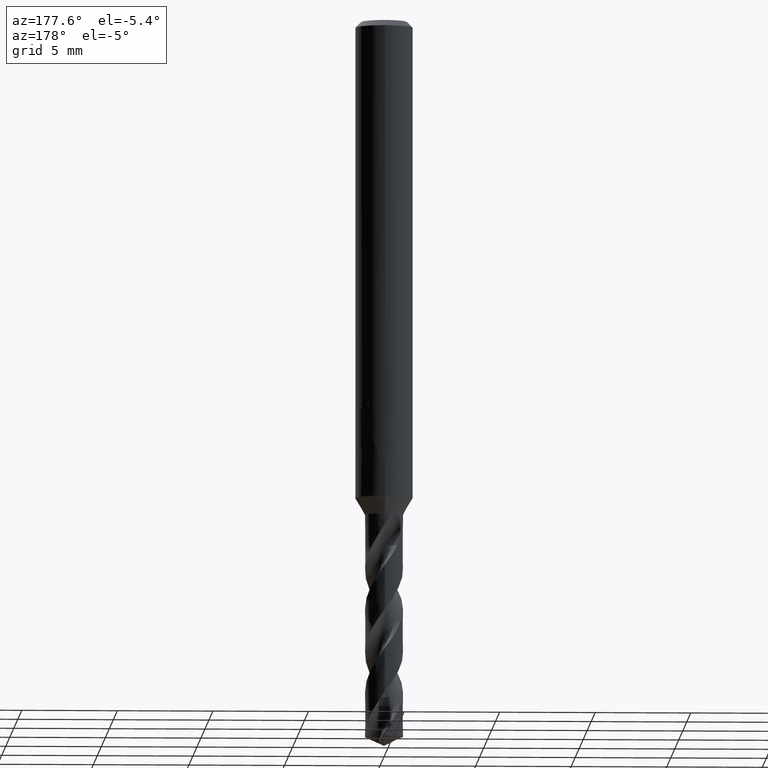
[diagram: clean part render]
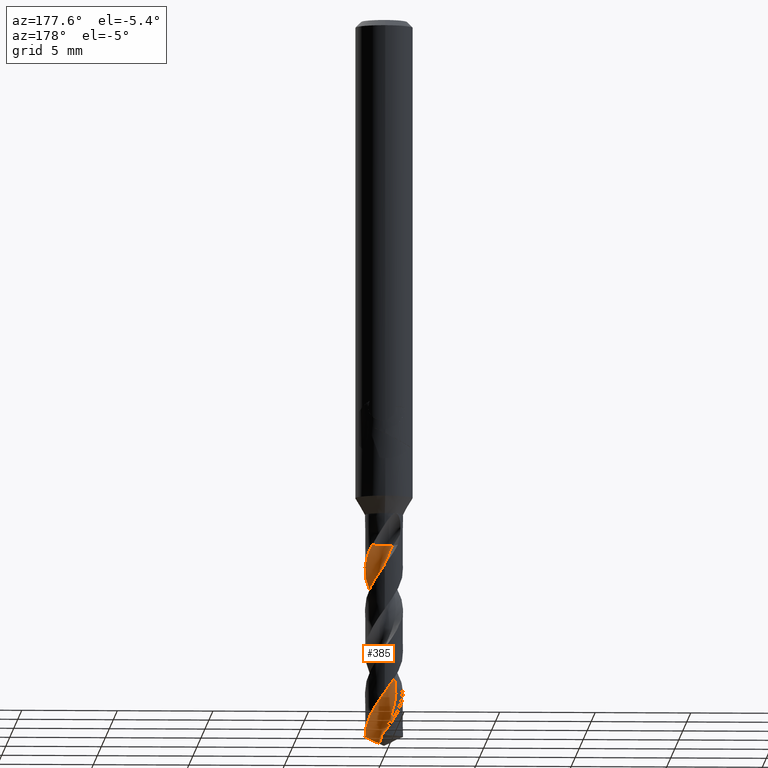
[diagram: same view with one face highlighted and labeled with its STEP entity id]
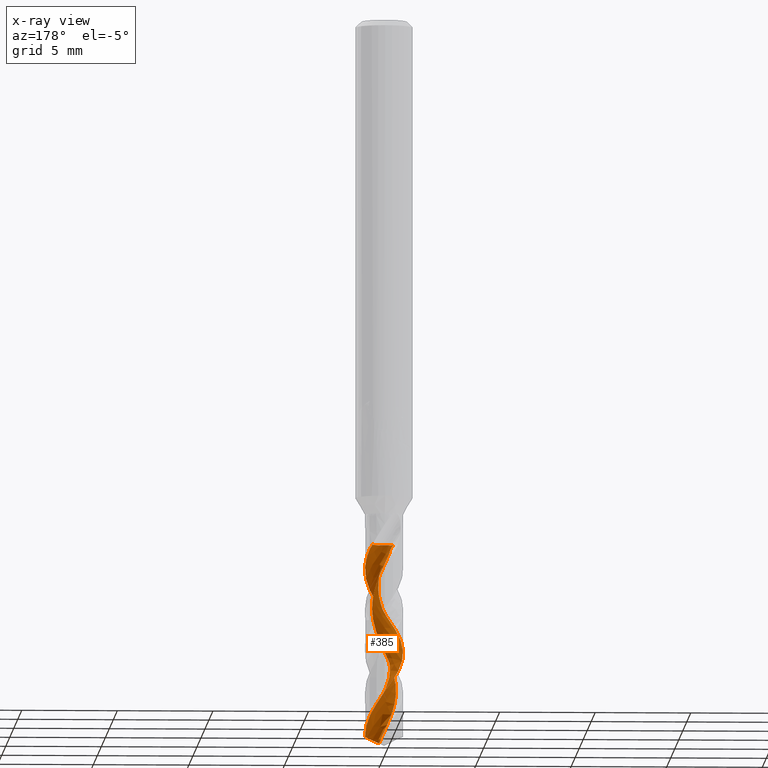
[diagram: x-ray of the same camera — body ghosted, the highlighted face saturated]
A machine part, auxiliary view. The second image highlights one B-rep face of the part: STEP entity #385.
The next image is the same camera in x-ray: the body ghosted, the highlighted face saturated — about 0% of this face is hidden behind the body in this view.
In plain terms, the highlighted face is a freeform B-spline surface patch.
Its self-contained STEP definition (entity closure, byte-faithful):
#349=VERTEX_POINT('',#884);
#385=ADVANCED_FACE('',(#923),#924,.F.);
#393=VERTEX_POINT('',#933);
#425=VERTEX_POINT('',#968);
#495=EDGE_CURVE('',#785,#585,#1048,.T.);
#503=EDGE_CURVE('',#425,#349,#1056,.T.);
#579=VERTEX_POINT('',#1137);
#585=VERTEX_POINT('',#1143);
#659=EDGE_CURVE('',#349,#665,#1227,.T.);
#665=VERTEX_POINT('',#1233);
#707=EDGE_CURVE('',#393,#579,#1278,.T.);
#717=EDGE_CURVE('',#579,#785,#1289,.T.);
#729=EDGE_CURVE('',#585,#425,#1301,.T.);
#743=EDGE_CURVE('',#665,#393,#1316,.T.);
#785=VERTEX_POINT('',#1363);
#884=CARTESIAN_POINT('',(-3.61367496519051E-015,0.994980257079834,-35.2584758952379));
#923=FACE_OUTER_BOUND('',#1711,.T.);
#924=B_SPLINE_SURFACE_WITH_KNOTS('',3,3,((#1712,#1713,#1714,#1715,#1716,#1717,#1718,#1719,#1720,#1721,#1722,#1723,#1724,#1725,#1726,#1727,#1728,#1729,#1730,#1731,#1732,#1733,#1734,#1735,#1736,#1737,#1738,#1739,#1740,#1741,#1742,#1743,#1744,#1745,#1746,#1747,#1748,#1749,#1750,#1751,#1752,#1753,#1754,#1755,#1756,#1757,#1758,#1759,#1760,#1761,#1762,#1763,#1764),(#1765,#1766,#1767,#1768,#1769,#1770,#1771,#1772,#1773,#1774,#1775,#1776,#1777,#1778,#1779,#1780,#1781,#1782,#1783,#1784,#1785,#1786,#1787,#1788,#1789,#1790,#1791,#1792,#1793,#1794,#1795,#1796,#1797,#1798,#1799,#1800,#1801,#1802,#1803,#1804,#1805,#1806,#1807,#1808,#1809,#1810,#1811,#1812,#1813,#1814,#1815,#1816,#1817),(#1818,#1819,#1820,#1821,#1822,#1823,#1824,#1825,#1826,#1827,#1828,#1829,#1830,#1831,#1832,#1833,#1834,#1835,#1836,#1837,#1838,#1839,#1840,#1841,#1842,#1843,#1844,#1845,#1846,#1847,#1848,#1849,#1850,#1851,#1852,#1853,#1854,#1855,#1856,#1857,#1858,#1859,#1860,#1861,#1862,#1863,#1864,#1865,#1866,#1867,#1868,#1869,#1870),(#1871,#1872,#1873,#1874,#1875,#1876,#1877,#1878,#1879,#1880,#1881,#1882,#1883,#1884,#1885,#1886,#1887,#1888,#1889,#1890,#1891,#1892,#1893,#1894,#1895,#1896,#1897,#1898,#1899,#1900,#1901,#1902,#1903,#1904,#1905,#1906,#1907,#1908,#1909,#1910,#1911,#1912,#1913,#1914,#1915,#1916,#1917,#1918,#1919,#1920,#1921,#1922,#1923),(#1924,#1925,#1926,#1927,#1928,#1929,#1930,#1931,#1932,#1933,#1934,#1935,#1936,#1937,#1938,#1939,#1940,#1941,#1942,#1943,#1944,#1945,#1946,#1947,#1948,#1949,#1950,#1951,#1952,#1953,#1954,#1955,#1956,#1957,#1958,#1959,#1960,#1961,#1962,#1963,#1964,#1965,#1966,#1967,#1968,#1969,#1970,#1971,#1972,#1973,#1974,#1975,#1976),(#1977,#1978,#1979,#1980,#1981,#1982,#1983,#1984,#1985,#1986,#1987,#1988,#1989,#1990,#1991,#1992,#1993,#1994,#1995,#1996,#1997,#1998,#1999,#2000,#2001,#2002,#2003,#2004,#2005,#2006,#2007,#2008,#2009,#2010,#2011,#2012,#2013,#2014,#2015,#2016,#2017,#2018,#2019,#2020,#2021,#2022,#2023,#2024,#2025,#2026,#2027,#2028,#2029),(#2030,#2031,#2032,#2033,#2034,#2035,#2036,#2037,#2038,#2039,#2040,#2041,#2042,#2043,#2044,#2045,#2046,#2047,#2048,#2049,#2050,#2051,#2052,#2053,#2054,#2055,#2056,#2057,#2058,#2059,#2060,#2061,#2062,#2063,#2064,#2065,#2066,#2067,#2068,#2069,#2070,#2071,#2072,#2073,#2074,#2075,#2076,#2077,#2078,#2079,#2080,#2081,#2082),(#2083,#2084,#2085,#2086,#2087,#2088,#2089,#2090,#2091,#2092,#2093,#2094,#2095,#2096,#2097,#2098,#2099,#2100,#2101,#2102,#2103,#2104,#2105,#2106,#2107,#2108,#2109,#2110,#2111,#2112,#2113,#2114,#2115,#2116,#2117,#2118,#2119,#2120,#2121,#2122,#2123,#2124,#2125,#2126,#2127,#2128,#2129,#2130,#2131,#2132,#2133,#2134,#2135),(#2136,#2137,#2138,#2139,#2140,#2141,#2142,#2143,#2144,#2145,#2146,#2147,#2148,#2149,#2150,#2151,#2152,#2153,#2154,#2155,#2156,#2157,#2158,#2159,#2160,#2161,#2162,#2163,#2164,#2165,#2166,#2167,#2168,#2169,#2170,#2171,#2172,#2173,#2174,#2175,#2176,#2177,#2178,#2179,#2180,#2181,#2182,#2183,#2184,#2185,#2186,#2187,#2188)),.UNSPECIFIED.,.F.,.F.,.F.,(4,1,1,1,1,1,4),(4,1,2,2,2,2,1,2,1,2,1,2,1,2,1,2,1,2,1,2,1,2,1,2,1,2,1,2,1,2,1,2,1,4),(-2.21224020982019E-017,0.589055134037495,1.17811026807499,1.76716540211248,2.35622053614998,2.74892395884164,3.14162738153331),(0.0,0.231832086670922,0.463664173341845,0.927328346683689,1.39099252002553,1.85465669336738,2.31832086670922,2.78198504005107,3.24564921339291,3.70931338673476,4.1729775600766,4.63664173341845,5.10030590676029,5.56397008010214,6.02763425344398,6.49129842678583,6.95496260012767,7.41862677346952,7.88229094681136,8.3459551201532,8.80961929349505,9.27328346683689,9.73694764017874,10.2006118135206,10.6642759868624,11.1279401602043,11.5916043335461,12.055268506888,12.5189326802298,12.9825968535717,13.4462610269135,13.9099252002553,14.3735893735972,14.837253546939),.UNSPECIFIED.);
#933=CARTESIAN_POINT('',(0.634005459942831,0.766739279433664,-27.50944));
#968=CARTESIAN_POINT('',(0.992945647726752,-0.0639057169625815,-37.5360238801358));
#1048=B_SPLINE_CURVE_WITH_KNOTS('',3,(#3103,#3104,#3105,#3106,#3107,#3108,#3109,#3110,#3111,#3112,#3113,#3114,#3115,#3116,#3117,#3118,#3119,#3120,#3121,#3122,#3123,#3124,#3125,#3126,#3127,#3128,#3129,#3130,#3131,#3132,#3133,#3134,#3135,#3136,#3137,#3138,#3139,#3140,#3141,#3142,#3143,#3144,#3145,#3146,#3147,#3148,#3149,#3150,#3151,#3152,#3153,#3154,#3155),.UNSPECIFIED.,.F.,.F.,(4,1,2,2,2,2,1,2,1,2,1,2,1,2,1,2,1,2,1,2,1,2,1,2,1,2,1,2,1,2,1,2,1,4),(0.0,0.231832086670922,0.463664173341845,0.927328346683689,1.39099252002553,1.85465669336738,2.31832086670922,2.78198504005107,3.24564921339291,3.70931338673476,4.1729775600766,4.63664173341845,5.10030590676029,5.56397008010214,6.02763425344398,6.49129842678583,6.95496260012767,7.41862677346952,7.88229094681136,8.3459551201532,8.80961929349505,9.27328346683689,9.73694764017874,10.2006118135206,10.6642759868624,11.1279401602043,11.5916043335461,12.055268506888,12.5189326802298,12.9825968535717,13.4462610269135,13.9099252002553,14.3735893735972,14.837253546939),.UNSPECIFIED.);
#1056=B_SPLINE_CURVE_WITH_KNOTS('',3,(#3167,#3168,#3169,#3170,#3171,#3172,#3173,#3174,#3175,#3176,#3177,#3178,#3179,#3180,#3181,#3182,#3183,#3184,#3185,#3186,#3187,#3188,#3189,#3190,#3191,#3192,#3193,#3194,#3195,#3196,#3197,#3198,#3199,#3200,#3201,#3202,#3203,#3204,#3205,#3206,#3207,#3208,#3209,#3210,#3211,#3212,#3213,#3214,#3215,#3216,#3217,#3218,#3219,#3220,#3221,#3222,#3223,#3224,#3225,#3226,#3227,#3228,#3229,#3230,#3231,#3232,#3233,#3234,#3235,#3236,#3237,#3238,#3239,#3240),.UNSPECIFIED.,.F.,.F.,(4,2,2,2,2,2,2,2,2,2,2,2,2,2,2,2,2,2,2,2,2,2,2,2,2,2,2,2,2,2,2,2,2,2,2,2,4),(0.0,0.394065621375355,0.934909954895047,1.23045254482321,1.79573463640564,1.91371415720669,2.34253294648856,2.82976244811508,3.39646485786344,3.64061740881803,4.20640134149998,4.45018544701288,5.01521057691339,5.26029601995287,5.82456892173175,6.06892474614359,6.632483601876,6.87695095307351,7.43982451025075,7.6842168855079,8.24628991570021,8.48948100096601,9.05121177141874,9.2976182816241,9.85750318488676,10.0897904082736,10.6256909843782,11.3785430816134,11.5969114467672,11.7428132302009,11.9062518498851,11.9990023684595,12.0757696665202,12.1392524666445,12.2142878946296,12.352760532013,12.6820977328731),.UNSPECIFIED.);
#1137=CARTESIAN_POINT('',(-0.08731349126734,0.30426451252211,-27.50944));
#1143=CARTESIAN_POINT('',(0.194011570796926,0.595650844553217,-37.7078812639521));
#1227=B_SPLINE_CURVE_WITH_KNOTS('',3,(#4567,#4568,#4569,#4570,#4571,#4572,#4573,#4574,#4575,#4576,#4577,#4578,#4579,#4580,#4581,#4582,#4583,#4584,#4585,#4586,#4587,#4588,#4589,#4590,#4591,#4592,#4593,#4594,#4595,#4596,#4597,#4598,#4599,#4600,#4601,#4602,#4603,#4604,#4605,#4606,#4607,#4608,#4609,#4610,#4611,#4612,#4613,#4614,#4615,#4616,#4617,#4618,#4619,#4620,#4621,#4622,#4623,#4624,#4625,#4626,#4627,#4628,#4629,#4630,#4631,#4632,#4633,#4634,#4635,#4636,#4637,#4638,#4639,#4640),.UNSPECIFIED.,.F.,.F.,(4,2,2,2,2,2,2,2,2,2,2,2,2,2,2,2,2,2,2,2,2,2,2,2,2,2,2,2,2,2,2,2,2,2,2,2,4),(0.0,0.394065621375355,0.934909954895047,1.23045254482321,1.79573463640564,1.91371415720669,2.34253294648856,2.82976244811508,3.39646485786344,3.64061740881803,4.20640134149998,4.45018544701288,5.01521057691339,5.26029601995287,5.82456892173175,6.06892474614359,6.632483601876,6.87695095307351,7.43982451025075,7.6842168855079,8.24628991570021,8.48948100096601,9.05121177141874,9.2976182816241,9.85750318488676,10.0897904082736,10.6256909843782,11.3785430816134,11.5969114467672,11.7428132302009,11.9062518498851,11.9990023684595,12.0757696665202,12.1392524666445,12.2142878946296,12.352760532013,12.6820977328731),.UNSPECIFIED.);
#1233=CARTESIAN_POINT('',(1.12186237051583E-014,-0.99494236066859,-30.8867368443555));
#1278=CIRCLE('',#4769,0.66333333);
#1289=CIRCLE('',#4781,0.66333333);
#1301=B_SPLINE_CURVE_WITH_KNOTS('',3,(#4797,#4798,#4799,#4800,#4801,#4802,#4803,#4804,#4805,#4806,#4807,#4808,#4809,#4810,#4811,#4812,#4813,#4814,#4815,#4816),.UNSPECIFIED.,.F.,.F.,(4,2,2,2,2,2,2,2,2,4),(0.0,0.363573521763154,0.663272953818648,1.00955287219522,1.40543816925165,1.87232061438025,2.42786681763913,3.08239496442251,3.83600489231849,4.6379763892587),.UNSPECIFIED.);
#1316=B_SPLINE_CURVE_WITH_KNOTS('',3,(#4868,#4869,#4870,#4871,#4872,#4873,#4874,#4875,#4876,#4877,#4878,#4879,#4880,#4881,#4882,#4883,#4884,#4885,#4886,#4887,#4888,#4889,#4890,#4891,#4892,#4893,#4894,#4895,#4896,#4897,#4898,#4899,#4900,#4901,#4902,#4903,#4904,#4905,#4906,#4907,#4908,#4909,#4910,#4911,#4912,#4913,#4914,#4915,#4916,#4917,#4918,#4919,#4920,#4921,#4922,#4923,#4924,#4925,#4926,#4927,#4928,#4929,#4930,#4931,#4932,#4933,#4934,#4935,#4936,#4937,#4938,#4939,#4940,#4941),.UNSPECIFIED.,.F.,.F.,(4,2,2,2,2,2,2,2,2,2,2,2,2,2,2,2,2,2,2,2,2,2,2,2,2,2,2,2,2,2,2,2,2,2,2,2,4),(0.0,0.394065621375355,0.934909954895047,1.23045254482321,1.79573463640564,1.91371415720669,2.34253294648856,2.82976244811508,3.39646485786344,3.64061740881803,4.20640134149998,4.45018544701288,5.01521057691339,5.26029601995287,5.82456892173175,6.06892474614359,6.632483601876,6.87695095307351,7.43982451025075,7.6842168855079,8.24628991570021,8.48948100096601,9.05121177141874,9.2976182816241,9.85750318488676,10.0897904082736,10.6256909843782,11.3785430816134,11.5969114467672,11.7428132302009,11.9062518498851,11.9990023684595,12.0757696665202,12.1392524666445,12.2142878946296,12.352760532013,12.6820977328731),.UNSPECIFIED.);
#1363=CARTESIAN_POINT('',(-0.469047495759342,0.492785834240657,-27.50944));
#1711=EDGE_LOOP('',(#5406,#5407,#5408,#5409,#5410,#5411,#5412));
#1712=CARTESIAN_POINT('',(0.469047495759345,1.43088082575934,-27.50944));
#1713=CARTESIAN_POINT('',(0.523852125290527,1.4254915773925,-27.5639561534519));
#1714=CARTESIAN_POINT('',(0.634597521068751,1.40356857213399,-27.6739877392295));
#1715=CARTESIAN_POINT('',(0.742897870540587,1.35124856388881,-27.7843322648949));
#1716=CARTESIAN_POINT('',(0.896680598547946,1.24512028274347,-27.9471800313369));
#1717=CARTESIAN_POINT('',(0.990097844429725,1.16682402625766,-28.0552036112662));
#1718=CARTESIAN_POINT('',(1.16245906029882,1.0022086248497,-28.2752565461716));
#1719=CARTESIAN_POINT('',(1.23868271218038,0.90898080158957,-28.385110506646));
#1720=CARTESIAN_POINT('',(1.36428033174522,0.703300568858309,-28.6030832715631));
#1721=CARTESIAN_POINT('',(1.41544920999945,0.59351907270835,-28.7122363083211));
#1722=CARTESIAN_POINT('',(1.49005410778,0.364554127049469,-28.9310896328373));
#1723=CARTESIAN_POINT('',(1.53875589603047,0.127997634077217,-29.149763295509));
#1724=CARTESIAN_POINT('',(1.53145675254522,-0.113651215975207,-29.3686492639029));
#1725=CARTESIAN_POINT('',(1.49347070300843,-0.351550548774314,-29.5872259091766));
#1726=CARTESIAN_POINT('',(1.42905799914967,-0.584432666251426,-29.8056367481347));
#1727=CARTESIAN_POINT('',(1.31279313376343,-0.796532936136183,-30.0244764497449));
#1728=CARTESIAN_POINT('',(1.17100089661691,-0.991345777900406,-30.2431680658366));
#1729=CARTESIAN_POINT('',(1.00790433968133,-1.16962992239729,-30.4616689555733));
#1730=CARTESIAN_POINT('',(0.808018266807519,-1.30576436217012,-30.6805170586919));
#1731=CARTESIAN_POINT('',(0.593241505882129,-1.41492959367733,-30.8991738172173));
#1732=CARTESIAN_POINT('',(0.366986532249099,-1.49972243381461,-31.1176496915035));
#1733=CARTESIAN_POINT('',(0.127076636072798,-1.53028128971307,-31.3364963165459));
#1734=CARTESIAN_POINT('',(-0.113857127962474,-1.53003803105181,-31.5551618378102));
#1735=CARTESIAN_POINT('',(-0.353948854195119,-1.50286134335859,-31.7736440461303));
#1736=CARTESIAN_POINT('',(-0.581577077886675,-1.42115776499247,-31.9924910953264));
#1737=CARTESIAN_POINT('',(-0.79613305127607,-1.31154705697549,-32.2111543791463));
#1738=CARTESIAN_POINT('',(-0.997711173316868,-1.17832213016801,-32.429635040245));
#1739=CARTESIAN_POINT('',(-1.163428095229,-1.00217331118689,-32.6484823066649));
#1740=CARTESIAN_POINT('',(-1.30482548961338,-0.807094299374426,-32.8671465757887));
#1741=CARTESIAN_POINT('',(-1.42393742316172,-0.596869055335962,-33.0856271874641));
#1742=CARTESIAN_POINT('',(-1.49161351712876,-0.364684787840438,-33.3044734256718));
#1743=CARTESIAN_POINT('',(-1.52903163594536,-0.126676478547412,-33.5231369506596));
#1744=CARTESIAN_POINT('',(-1.53971700466936,0.114711660338102,-33.7416185276406));
#1745=CARTESIAN_POINT('',(-1.494592760544,0.352313659762754,-33.9604663859121));
#1746=CARTESIAN_POINT('',(-1.41985616150219,0.581364375696952,-34.1791303186505));
#1747=CARTESIAN_POINT('',(-1.31976826449274,0.801285163870561,-34.3976103871286));
#1748=CARTESIAN_POINT('',(-1.17168762767214,0.992496059397506,-34.6164567278605));
#1749=CARTESIAN_POINT('',(-1.00111362925789,1.1626490445742,-34.8351210342784));
#1750=CARTESIAN_POINT('',(-0.812093026409668,1.31315868956556,-35.0536025404237));
#1751=CARTESIAN_POINT('',(-0.59333450208152,1.41628918130084,-35.2724485443002));
#1752=CARTESIAN_POINT('',(-0.364090164073692,1.49043809364499,-35.4911101164129));
#1753=CARTESIAN_POINT('',(-0.127334014933388,1.53871551780201,-35.7095918186254));
#1754=CARTESIAN_POINT('',(0.114396061045232,1.53128728057108,-35.9284461087559));
#1755=CARTESIAN_POINT('',(0.352299998586033,1.49327329489971,-36.1471191872444));
#1756=CARTESIAN_POINT('',(0.585141180595715,1.42877950974381,-36.3655928798263));
#1757=CARTESIAN_POINT('',(0.797149716344138,1.31241637180286,-36.5844106876538));
#1758=CARTESIAN_POINT('',(0.991928956717993,1.17057668113497,-36.8030458400653));
#1759=CARTESIAN_POINT('',(1.17024297016781,1.00742590872968,-37.021561389749));
#1760=CARTESIAN_POINT('',(1.30620054752293,0.807319103485255,-37.240489741694));
#1761=CARTESIAN_POINT('',(1.41486869356382,0.592245149370943,-37.4591996323837));
#1762=CARTESIAN_POINT('',(1.49915842727031,0.366047120618607,-37.6775305817545));
#1763=CARTESIAN_POINT('',(1.53043911075727,0.12682470517416,-37.8961175438895));
#1764=CARTESIAN_POINT('',(1.5312166262937,0.00672584469895976,-38.005373557082));
#1765=CARTESIAN_POINT('',(0.561142768458453,1.33877954161602,-27.5094400000001));
#1766=CARTESIAN_POINT('',(0.615499082124059,1.33294200930681,-27.5639432191229));
#1767=CARTESIAN_POINT('',(0.723345342924651,1.30806114549102,-27.674125572907));
#1768=CARTESIAN_POINT('',(0.824012957540656,1.24913673116973,-27.7846628758046));
#1769=CARTESIAN_POINT('',(0.961922774729995,1.13164368319929,-27.9472561576524));
#1770=CARTESIAN_POINT('',(1.04547515733607,1.04856200983023,-28.0550141588977));
#1771=CARTESIAN_POINT('',(1.20028452121202,0.877221840536945,-28.2753619260376));
#1772=CARTESIAN_POINT('',(1.26687201991613,0.781387861899828,-28.38532279746));
#1773=CARTESIAN_POINT('',(1.3716541441098,0.572839386719333,-28.6031500390782));
#1774=CARTESIAN_POINT('',(1.41252373341492,0.462895949096873,-28.7122662464919));
#1775=CARTESIAN_POINT('',(1.46657551454579,0.236025638084384,-28.9311595621025));
#1776=CARTESIAN_POINT('',(1.49547255532332,0.00392227197587784,-29.1498353257426));
#1777=CARTESIAN_POINT('',(1.46978533728727,-0.228846215236473,-29.3687673349535));
#1778=CARTESIAN_POINT('',(1.41423669204213,-0.455449950615468,-29.5873256544571));
#1779=CARTESIAN_POINT('',(1.33411439291679,-0.675289056065851,-29.8056837185899));
#1780=CARTESIAN_POINT('',(1.20552149848313,-0.871136400752534,-30.0245601342631));
#1781=CARTESIAN_POINT('',(1.05323092925351,-1.04794059934313,-30.2432575642519));
#1782=CARTESIAN_POINT('',(0.882061217220609,-1.20748241188952,-30.4617244734421));
#1783=CARTESIAN_POINT('',(0.67856819108119,-1.32352922047969,-30.6806109588497));
#1784=CARTESIAN_POINT('',(0.462614299959827,-1.41187921941359,-30.8992662160582));
#1785=CARTESIAN_POINT('',(0.237676791463445,-1.47630960329388,-31.1177028906215));
#1786=CARTESIAN_POINT('',(0.00367217040927578,-1.48733661761516,-31.3365876125807));
#1787=CARTESIAN_POINT('',(-0.228860117168054,-1.46801320673573,-31.5552534707653));
#1788=CARTESIAN_POINT('',(-0.458532752766075,-1.42329111474783,-31.7736978013031));
#1789=CARTESIAN_POINT('',(-0.672030445142194,-1.32686512662339,-31.992583031228));
#1790=CARTESIAN_POINT('',(-0.870437330925706,-1.20406847042738,-32.2112461802797));
#1791=CARTESIAN_POINT('',(-1.05476578196406,-1.0599414500307,-32.4296886426655));
#1792=CARTESIAN_POINT('',(-1.20120805800968,-0.877090973323785,-32.648574136388));
#1793=CARTESIAN_POINT('',(-1.32222963804178,-0.677595759536329,-32.8672384755912));
#1794=CARTESIAN_POINT('',(-1.4210223752754,-0.465489062188738,-33.0856808770378));
#1795=CARTESIAN_POINT('',(-1.46848341262782,-0.23608503602631,-33.3045651275933));
#1796=CARTESIAN_POINT('',(-1.48574360885446,-0.00339264342882482,-33.5232285717202));
#1797=CARTESIAN_POINT('',(-1.47747125095764,0.230447044215444,-33.7416721457212));
#1798=CARTESIAN_POINT('',(-1.41559629315142,0.456392897200152,-33.9605583534288));
#1799=CARTESIAN_POINT('',(-1.32531069596129,0.671552754869001,-34.1792222753857));
#1800=CARTESIAN_POINT('',(-1.21175849357654,0.876138977718857,-34.3976640043086));
#1801=CARTESIAN_POINT('',(-1.05404700170778,1.04936060196218,-34.6165483765368));
#1802=CARTESIAN_POINT('',(-0.875927230665374,1.20008055535795,-34.8352128123321));
#1803=CARTESIAN_POINT('',(-0.681872229021141,1.33081563741838,-35.0536563642879));
#1804=CARTESIAN_POINT('',(-0.46269995273771,1.41354288128012,-35.2725403129469));
#1805=CARTESIAN_POINT('',(-0.23555612391899,1.46694793155639,-35.4912012435634));
#1806=CARTESIAN_POINT('',(-0.0032934210934245,1.49532096290996,-35.7096446809548));
#1807=CARTESIAN_POINT('',(0.229542745976684,1.46952844601472,-35.9285387383457));
#1808=CARTESIAN_POINT('',(0.456157700854035,1.41398679518621,-36.1472142965678));
#1809=CARTESIAN_POINT('',(0.675955672496533,1.33379532628264,-36.365649398244));
#1810=CARTESIAN_POINT('',(0.871703243010514,1.20511057932575,-36.5844990734332));
#1811=CARTESIAN_POINT('',(1.04847925856334,1.0527858258447,-36.8031262475715));
#1812=CARTESIAN_POINT('',(1.20805863245395,0.881570534998455,-37.0216071166151));
#1813=CARTESIAN_POINT('',(1.32388227226069,0.67785389990119,-37.2405914957839));
#1814=CARTESIAN_POINT('',(1.41164121999842,0.461618505296414,-37.4593182917876));
#1815=CARTESIAN_POINT('',(1.4755733689671,0.23678363045109,-37.6775935708706));
#1816=CARTESIAN_POINT('',(1.48758774662896,0.00340491744386972,-37.8961929066577));
#1817=CARTESIAN_POINT('',(1.47899703159219,-0.112594286289383,-38.005451431928));
#1818=CARTESIAN_POINT('',(0.689268199729617,1.09893899993785,-27.50944));
#1819=CARTESIAN_POINT('',(0.742457057369352,1.09247780495028,-27.5639243805621));
#1820=CARTESIAN_POINT('',(0.842717965906323,1.06344619311602,-27.6743263262273));
#1821=CARTESIAN_POINT('',(0.924132741057472,0.995956501126523,-27.785144406537));
#1822=CARTESIAN_POINT('',(1.02344096113328,0.865386366303798,-27.9473670355054));
#1823=CARTESIAN_POINT('',(1.08438434067227,0.778727122781395,-28.0547382229355));
#1824=CARTESIAN_POINT('',(1.20005219746149,0.604597022333362,-28.2755154113387));
#1825=CARTESIAN_POINT('',(1.24580910769442,0.50940020910919,-28.3856319967081));
#1826=CARTESIAN_POINT('',(1.30726867687434,0.30774524356664,-28.6032472851678));
#1827=CARTESIAN_POINT('',(1.32746517134638,0.203724130093772,-28.7123098516384));
#1828=CARTESIAN_POINT('',(1.34172822483183,-0.00649762811195538,-28.9312614127614));
#1829=CARTESIAN_POINT('',(1.33376183372906,-0.217694703793919,-29.1499402368521));
#1830=CARTESIAN_POINT('',(1.27672607186597,-0.421571751908712,-29.3689393048986));
#1831=CARTESIAN_POINT('',(1.19294265525482,-0.614959685580923,-29.5874709315642));
#1832=CARTESIAN_POINT('',(1.08934703819332,-0.799215890765287,-29.8057521298551));
#1833=CARTESIAN_POINT('',(0.945982740001201,-0.955118625982923,-30.0246820219681));
#1834=CARTESIAN_POINT('',(0.7836406944514,-1.08958039099203,-30.2433879155562));
#1835=CARTESIAN_POINT('',(0.607709247322405,-1.20678478514527,-30.4618053367044));
#1836=CARTESIAN_POINT('',(0.409192410764145,-1.28051513294998,-30.680747721306));
#1837=CARTESIAN_POINT('',(0.203510033608249,-1.32656866811968,-30.8994007960079));
#1838=CARTESIAN_POINT('',(-0.00644705333067126,-1.35111991288368,-31.1177803748927));
#1839=CARTESIAN_POINT('',(-0.21680994686355,-1.32670929903033,-31.3367205814623));
#1840=CARTESIAN_POINT('',(-0.420987737849274,-1.27436439086934,-31.5553869359092));
#1841=CARTESIAN_POINT('',(-0.619205990971724,-1.20091033591326,-31.7737760964435));
#1842=CARTESIAN_POINT('',(-0.795546948842866,-1.08364259474951,-31.9927169294194));
#1843=CARTESIAN_POINT('',(-0.953696374902964,-0.944297714522434,-32.2113798930246));
#1844=CARTESIAN_POINT('',(-1.09695372458015,-0.788852387116899,-32.4297667142014));
#1845=CARTESIAN_POINT('',(-1.20082691598065,-0.604302781921109,-32.6487078795015));
#1846=CARTESIAN_POINT('',(-1.27846556870218,-0.408341909223809,-32.8673723324707));
#1847=CARTESIAN_POINT('',(-1.33552565414033,-0.204798913020256,-33.0857590751515));
#1848=CARTESIAN_POINT('',(-1.34428907697925,0.00679194286949952,-33.3046986848798));
#1849=CARTESIAN_POINT('',(-1.32450352608075,0.216640269307143,-33.5233620223083));
#1850=CARTESIAN_POINT('',(-1.2829369479602,0.423903768791591,-33.7417502406382));
#1851=CARTESIAN_POINT('',(-1.19466774511213,0.616405941193758,-33.9606922959935));
#1852=CARTESIAN_POINT('',(-1.08174378701856,0.794386568670894,-34.179356216435));
#1853=CARTESIAN_POINT('',(-0.950593357595796,0.960173685178308,-34.397742088857));
#1854=CARTESIAN_POINT('',(-0.784551584141752,1.09161765407755,-34.6166818712636));
#1855=CARTESIAN_POINT('',(-0.603142469731279,1.19894020198069,-34.8353464765942));
#1856=CARTESIAN_POINT('',(-0.411022244617379,1.28711858506249,-35.0537347649495));
#1857=CARTESIAN_POINT('',(-0.203396616694713,1.3288353264649,-35.272673968784));
#1858=CARTESIAN_POINT('',(0.006971231077185,1.34207415883237,-35.4913339734098));
#1859=CARTESIAN_POINT('',(0.218186642813518,1.33340915437084,-35.7097216719394));
#1860=CARTESIAN_POINT('',(0.422118733506307,1.27632385777174,-35.928673652953));
#1861=CARTESIAN_POINT('',(0.615552299298238,1.19261319041529,-36.1473528215895));
#1862=CARTESIAN_POINT('',(0.79977420456236,1.08897231529897,-36.3657317165778));
#1863=CARTESIAN_POINT('',(0.955564993688452,0.945533865957739,-36.5846278072178));
#1864=CARTESIAN_POINT('',(1.0900174443055,0.783180867393847,-36.8032433593233));
#1865=CARTESIAN_POINT('',(1.20728000684514,0.607216430785163,-37.0216737184545));
#1866=CARTESIAN_POINT('',(1.28069293342443,0.408498306328222,-37.2407396979885));
#1867=CARTESIAN_POINT('',(1.32597721749396,0.202622738836339,-37.4594911193846));
#1868=CARTESIAN_POINT('',(1.35006766194035,-0.00714337796110105,-37.6776853059699));
#1869=CARTESIAN_POINT('',(1.32713754252817,-0.217164383840642,-37.8963026858627));
#1870=CARTESIAN_POINT('',(1.30231807554802,-0.319292484629576,-38.0055648557635));
#1871=CARTESIAN_POINT('',(0.649281538129694,0.692894558404914,-27.50944));
#1872=CARTESIAN_POINT('',(0.700493924262718,0.68662800973398,-27.5639266260167));
#1873=CARTESIAN_POINT('',(0.787830834467493,0.6587381375327,-27.6743023976468));
#1874=CARTESIAN_POINT('',(0.838085077470838,0.596603381073748,-27.7850870112438));
#1875=CARTESIAN_POINT('',(0.878327327907892,0.481883803571485,-27.9473538193588));
#1876=CARTESIAN_POINT('',(0.908078053152015,0.409600586439513,-28.0547711129317));
#1877=CARTESIAN_POINT('',(0.972579683649653,0.264606667180035,-28.2754971166824));
#1878=CARTESIAN_POINT('',(0.992875163558193,0.187562818339841,-28.3855951419489));
#1879=CARTESIAN_POINT('',(1.00602068566855,0.0306114608930301,-28.6032356942287));
#1880=CARTESIAN_POINT('',(1.00535626732121,-0.0487925072997061,-28.7123046543033));
#1881=CARTESIAN_POINT('',(0.983844036376431,-0.205083507116479,-28.93124927269));
#1882=CARTESIAN_POINT('',(0.947300613076539,-0.359474621758985,-29.1499277322832));
#1883=CARTESIAN_POINT('',(0.875223452216467,-0.501177500289704,-29.3689188069606));
#1884=CARTESIAN_POINT('',(0.783887644766876,-0.629589881612477,-29.587453615672));
#1885=CARTESIAN_POINT('',(0.680653614751424,-0.74988459730481,-29.8057439757619));
#1886=CARTESIAN_POINT('',(0.552143828908116,-0.843634841799309,-30.0246674933271));
#1887=CARTESIAN_POINT('',(0.41254404603617,-0.916885225711613,-30.2433723789129));
#1888=CARTESIAN_POINT('',(0.265951344708594,-0.977292479553329,-30.4617956978186));
#1889=CARTESIAN_POINT('',(0.10890674511146,-1.00236666770683,-30.6807314206879));
#1890=CARTESIAN_POINT('',(-0.0487124196951806,-1.00420163492467,-30.8993847543389));
#1891=CARTESIAN_POINT('',(-0.206744794269686,-0.991474684253285,-31.117771139464));
#1892=CARTESIAN_POINT('',(-0.358076636283643,-0.942545639367971,-31.3367047326059));
#1893=CARTESIAN_POINT('',(-0.499356056407469,-0.872624399512268,-31.5553710275248));
#1894=CARTESIAN_POINT('',(-0.634382337834305,-0.789529754864588,-31.7737667643023));
#1895=CARTESIAN_POINT('',(-0.746991037461214,-0.677218702787935,-31.9927009695098));
#1896=CARTESIAN_POINT('',(-0.841116881998653,-0.550771941261184,-32.2113639554114));
#1897=CARTESIAN_POINT('',(-0.923693510061512,-0.415428757592146,-32.4297574090066));
#1898=CARTESIAN_POINT('',(-0.973032675459814,-0.264232383121754,-32.6486919372084));
#1899=CARTESIAN_POINT('',(-0.999482874243807,-0.108833365609519,-32.8673563785486));
#1900=CARTESIAN_POINT('',(-1.01160476254825,0.0492472083540353,-33.0857497544502));
#1901=CARTESIAN_POINT('',(-0.986924896161737,0.206363352619912,-33.3046827647011));
#1902=CARTESIAN_POINT('',(-0.939949581235314,0.356835809422978,-33.5233461168467));
#1903=CARTESIAN_POINT('',(-0.878984496566465,0.503192597076866,-33.74174093127));
#1904=CARTESIAN_POINT('',(-0.785649388767234,0.631968724443891,-33.9606763317942));
#1905=CARTESIAN_POINT('',(-0.675459074592464,0.744691814257471,-34.1793402506125));
#1906=CARTESIAN_POINT('',(-0.554681342489987,0.847400062497699,-34.3977327832736));
#1907=CARTESIAN_POINT('',(-0.413058871455316,0.91977172672275,-34.616665957246));
#1908=CARTESIAN_POINT('',(-0.263709014208233,0.970201470662953,-34.8353305469586));
#1909=CARTESIAN_POINT('',(-0.109466252741849,1.00688940662158,-35.0537254185409));
#1910=CARTESIAN_POINT('',(0.0495767228296592,1.00705483042863,-35.2726580386601));
#1911=CARTESIAN_POINT('',(0.205540189858025,0.984153515943778,-35.4913181520554));
#1912=CARTESIAN_POINT('',(0.35962811958384,0.946811102770614,-35.7097124964105));
#1913=CARTESIAN_POINT('',(0.501416712718713,0.874764544704309,-35.9286575701801));
#1914=CARTESIAN_POINT('',(0.629972514225841,0.783554846724955,-36.1473363120968));
#1915=CARTESIAN_POINT('',(0.750261404572069,0.680299684124869,-36.3657219071794));
#1916=CARTESIAN_POINT('',(0.843899257974041,0.551747979933576,-36.5846124563036));
#1917=CARTESIAN_POINT('',(0.917183212497881,0.412150531019317,-36.8032294070082));
#1918=CARTESIAN_POINT('',(0.977684845112654,0.265523379264835,-37.0216657764615));
#1919=CARTESIAN_POINT('',(1.0023426183791,0.108383853173686,-37.2407220335235));
#1920=CARTESIAN_POINT('',(1.00325956955814,-0.0491698552880016,-37.45947051914));
#1921=CARTESIAN_POINT('',(0.990192122746427,-0.206932173987749,-37.6776743745726));
#1922=CARTESIAN_POINT('',(0.943122242772385,-0.35868742247165,-37.8962895954883));
#1923=CARTESIAN_POINT('',(0.909611372710626,-0.429983346806022,-38.0055513363653));
#1924=CARTESIAN_POINT('',(0.390445585406172,0.377498028329852,-27.50944));
#1925=CARTESIAN_POINT('',(0.440122743465846,0.372491400600334,-27.5639586387545));
#1926=CARTESIAN_POINT('',(0.517348032420774,0.352731163236963,-27.6739612546614));
#1927=CARTESIAN_POINT('',(0.544669715082026,0.312360645241614,-27.7842687385067));
#1928=CARTESIAN_POINT('',(0.54460530849018,0.243636042299948,-27.9471654036824));
#1929=CARTESIAN_POINT('',(0.556407810200269,0.200635833101241,-28.0552400144795));
#1930=CARTESIAN_POINT('',(0.594553546511334,0.108294489945377,-28.2752362973743));
#1931=CARTESIAN_POINT('',(0.603764560737856,0.0604896325611893,-28.3850697149945));
#1932=CARTESIAN_POINT('',(0.601574425171802,-0.0324498164557391,-28.6030704425402));
#1933=CARTESIAN_POINT('',(0.597241578133783,-0.079795645888252,-28.7122305560308));
#1934=CARTESIAN_POINT('',(0.575946057171227,-0.171369215618219,-28.9310761957372));
#1935=CARTESIAN_POINT('',(0.547201811383543,-0.262651407753717,-29.1497494552634));
#1936=CARTESIAN_POINT('',(0.497160706976996,-0.3443020563665,-29.3686265764708));
#1937=CARTESIAN_POINT('',(0.435644144144554,-0.414493508038159,-29.5872067434998));
#1938=CARTESIAN_POINT('',(0.368246194277106,-0.481807206100564,-29.8056277227375));
#1939=CARTESIAN_POINT('',(0.28661782650661,-0.532132641037821,-30.0244603698163));
#1940=CARTESIAN_POINT('',(0.199934997791474,-0.567122898436258,-30.2431508689027));
#1941=CARTESIAN_POINT('',(0.109291592019697,-0.596605090164277,-30.4616582878608));
#1942=CARTESIAN_POINT('',(0.0137618737364976,-0.604264357563562,-30.6804990159011));
#1943=CARTESIAN_POINT('',(-0.0793276154814912,-0.596035826312971,-30.8991560629123));
#1944=CARTESIAN_POINT('',(-0.173475445550531,-0.581161372956491,-31.1176394695097));
#1945=CARTESIAN_POINT('',(-0.262103201756602,-0.544642331226625,-31.3364787738465));
#1946=CARTESIAN_POINT('',(-0.341319790108582,-0.495051754885784,-31.555144230956));
#1947=CARTESIAN_POINT('',(-0.418447948425166,-0.439049185419428,-31.7736337176751));
#1948=CARTESIAN_POINT('',(-0.480819332959152,-0.366267536606873,-31.9924734286205));
#1949=CARTESIAN_POINT('',(-0.528877625613852,-0.28611504639146,-32.2111367410326));
#1950=CARTESIAN_POINT('',(-0.572168483091872,-0.201198855269739,-32.4296247406827));
#1951=CARTESIAN_POINT('',(-0.594694768758873,-0.108032293974053,-32.6484646602242));
#1952=CARTESIAN_POINT('',(-0.601118676432917,-0.0147981245507293,-32.8671289188526));
#1953=CARTESIAN_POINT('',(-0.601133736614074,0.0805153800977521,-33.0856168703));
#1954=CARTESIAN_POINT('',(-0.578911773717355,0.173757441275913,-33.3044558053613));
#1955=CARTESIAN_POINT('',(-0.542316867141607,0.259754918735771,-33.5231193457109));
#1956=CARTESIAN_POINT('',(-0.499060834983523,0.344692442788197,-33.7416082248442));
#1957=CARTESIAN_POINT('',(-0.436918243465338,0.417668112142208,-33.9604487148816));
#1958=CARTESIAN_POINT('',(-0.365256343103912,0.477650526018029,-34.179112648889));
#1959=CARTESIAN_POINT('',(-0.288148238167649,0.533673581854166,-34.3976000861962));
#1960=CARTESIAN_POINT('',(-0.199648691570886,0.570495472964132,-34.6164391150241));
#1961=CARTESIAN_POINT('',(-0.108563257207489,0.591432120283496,-34.8351034019194));
#1962=CARTESIAN_POINT('',(-0.0144211910162661,0.60635123040491,-35.0535921973368));
#1963=CARTESIAN_POINT('',(0.0811421198879199,0.598959531968677,-35.2724309102252));
#1964=CARTESIAN_POINT('',(0.171791616365925,0.5762346507699,-35.491092607311));
#1965=CARTESIAN_POINT('',(0.262447458309253,0.546786540065813,-35.7095816638028));
#1966=CARTESIAN_POINT('',(0.344253809911041,0.496825632968403,-35.9284283040531));
#1967=CARTESIAN_POINT('',(0.414699686722335,0.435425237381841,-36.1471009181677));
#1968=CARTESIAN_POINT('',(0.482044665282746,0.368010391568878,-36.3655820164523));
#1969=CARTESIAN_POINT('',(0.532275239553434,0.286367151727737,-36.5843937052652));
#1970=CARTESIAN_POINT('',(0.567342079380294,0.199673885503265,-36.8030303890544));
#1971=CARTESIAN_POINT('',(0.596947950014848,0.10897470345595,-37.0215526044557));
#1972=CARTESIAN_POINT('',(0.604167613581373,0.0134934725911742,-37.2404701884851));
#1973=CARTESIAN_POINT('',(0.595041101955527,-0.079232891983972,-37.4591768334442));
#1974=CARTESIAN_POINT('',(0.579970072559391,-0.173111713627641,-37.6775184781966));
#1975=CARTESIAN_POINT('',(0.545199855582323,-0.263009529772883,-37.8961030623137));
#1976=CARTESIAN_POINT('',(0.521591981496932,-0.303840822261731,-38.0053585935372));
#1977=CARTESIAN_POINT('',(0.0434802224347033,0.272399676660132,-27.50944));
#1978=CARTESIAN_POINT('',(0.0926458063970926,0.269081947895824,-27.5640039519547));
#1979=CARTESIAN_POINT('',(0.166418245990846,0.260320867030096,-27.6734783761644));
#1980=CARTESIAN_POINT('',(0.187553570030741,0.247353327706208,-27.7831104960064));
#1981=CARTESIAN_POINT('',(0.180436896534152,0.232509285143443,-27.9468987065378));
#1982=CARTESIAN_POINT('',(0.193447624021701,0.220003090098119,-28.055903731038));
#1983=CARTESIAN_POINT('',(0.238134515167272,0.179569172183175,-28.2748671154831));
#1984=CARTESIAN_POINT('',(0.253601742007712,0.15883528585759,-28.384325988372));
#1985=CARTESIAN_POINT('',(0.271703035208361,0.120749805966086,-28.602836532604));
#1986=CARTESIAN_POINT('',(0.28049585155627,0.0988940160300265,-28.7121256710268));
#1987=CARTESIAN_POINT('',(0.291327635198229,0.0550133937088626,-28.9308312110304));
#1988=CARTESIAN_POINT('',(0.299516513037015,0.0064907651584163,-29.1494971083024));
#1989=CARTESIAN_POINT('',(0.295414033327796,-0.0416903678988154,-29.3682129328521));
#1990=CARTESIAN_POINT('',(0.284680047093409,-0.0836093114078539,-29.5868573021781));
#1991=CARTESIAN_POINT('',(0.269920403541065,-0.129492641256632,-29.8054631700835));
#1992=CARTESIAN_POINT('',(0.244368175022308,-0.170901858286441,-30.0241671921882));
#1993=CARTESIAN_POINT('',(0.215668174880154,-0.203771722413939,-30.2428373276107));
#1994=CARTESIAN_POINT('',(0.181624104616896,-0.238048923674793,-30.4614637876697));
#1995=CARTESIAN_POINT('',(0.140131105647066,-0.263230979232559,-30.680170053705));
#1996=CARTESIAN_POINT('',(0.0996738076040074,-0.279444050325244,-30.8988323561421));
#1997=CARTESIAN_POINT('',(0.0537715935595837,-0.29453919462044,-31.1174530936314));
#1998=CARTESIAN_POINT('',(0.0053268362637255,-0.298158893631302,-31.336158937208));
#1999=CARTESIAN_POINT('',(-0.0380927707035701,-0.294240414277349,-31.5548232049214));
#2000=CARTESIAN_POINT('',(-0.0858397321454231,-0.286846684997048,-31.7734453921026));
#2001=CARTESIAN_POINT('',(-0.130631682056294,-0.268076055214852,-31.9921513560093));
#2002=CARTESIAN_POINT('',(-0.167531767534092,-0.24487138961372,-32.2108151201136));
#2003=CARTESIAN_POINT('',(-0.206714703296374,-0.216605547709871,-32.4294369524173));
#2004=CARTESIAN_POINT('',(-0.238101033630368,-0.179543787919806,-32.6481429609879));
#2005=CARTESIAN_POINT('',(-0.260439967889313,-0.142116285058474,-32.8668069508715));
#2006=CARTESIAN_POINT('',(-0.282516733904889,-0.0991424360453463,-33.0854287791771));
#2007=CARTESIAN_POINT('',(-0.293660860699008,-0.0518633821283009,-33.3041345502892));
#2008=CARTESIAN_POINT('',(-0.29658031909272,-0.00835941988096403,-33.5227983578167));
#2009=CARTESIAN_POINT('',(-0.296742130388489,0.0399614681680418,-33.7414203816511));
#2010=CARTESIAN_POINT('',(-0.285200897502091,0.0871307756808375,-33.9601265308449));
#2011=CARTESIAN_POINT('',(-0.268047185385686,0.127190294876049,-34.178790483509));
#2012=CARTESIAN_POINT('',(-0.24625340938214,0.170302449894745,-34.3974122557763));
#2013=CARTESIAN_POINT('',(-0.214550060600148,0.207107593846429,-34.6161180302757));
#2014=CARTESIAN_POINT('',(-0.181066588757481,0.235040511032558,-34.8347818802304));
#2015=CARTESIAN_POINT('',(-0.142067344678553,0.263567962475452,-35.0534036263611));
#2016=CARTESIAN_POINT('',(-0.0971226602153407,0.281950481874754,-35.2721094204155));
#2017=CARTESIAN_POINT('',(-0.0546266137480473,0.291617772908574,-35.4907733507298));
#2018=CARTESIAN_POINT('',(-0.00692206130791457,0.299332606519644,-35.7093964673075));
#2019=CARTESIAN_POINT('',(0.0414909363884195,0.295312373585574,-35.9281038014855));
#2020=CARTESIAN_POINT('',(0.0837414096099399,0.284632412296893,-36.1467677072645));
#2021=CARTESIAN_POINT('',(0.129685540914191,0.269840690933235,-36.3653840179865));
#2022=CARTESIAN_POINT('',(0.171026199716556,0.244284898999677,-36.584084060518));
#2023=CARTESIAN_POINT('',(0.203998082465309,0.215543776456098,-36.8027486933197));
#2024=CARTESIAN_POINT('',(0.238410069350834,0.181413710854483,-37.0213924061622));
#2025=CARTESIAN_POINT('',(0.263206265241909,0.140086578544995,-37.2401137129695));
#2026=CARTESIAN_POINT('',(0.278683228513223,0.100202351910668,-37.4587611252539));
#2027=CARTESIAN_POINT('',(0.29368752782646,0.0544972852320554,-37.6772978150369));
#2028=CARTESIAN_POINT('',(0.298556317787591,0.00421166094409034,-37.8958390262075));
#2029=CARTESIAN_POINT('',(0.297310774560102,-0.0190101841473441,-38.0050857713857));
#2030=CARTESIAN_POINT('',(-0.260455352115229,0.333033840743269,-27.50944));
#2031=CARTESIAN_POINT('',(-0.210994619144832,0.331195555776272,-27.5640447994022));
#2032=CARTESIAN_POINT('',(-0.135391381417458,0.332118336267491,-27.6730430868566));
#2033=CARTESIAN_POINT('',(-0.107872918878661,0.342303778103838,-27.7820664021074));
#2034=CARTESIAN_POINT('',(-0.0985867744606974,0.370921057641431,-27.9466582931077));
#2035=CARTESIAN_POINT('',(-0.072372594887393,0.380916810096367,-28.0565020368918));
#2036=CARTESIAN_POINT('',(-0.00183018045701356,0.376977780627559,-28.2745343169575));
#2037=CARTESIAN_POINT('',(0.0292663815229322,0.374130357991005,-28.3836555579353));
#2038=CARTESIAN_POINT('',(0.0847768776881876,0.369218174031618,-28.6026256757121));
#2039=CARTESIAN_POINT('',(0.113740142641005,0.36128766809361,-28.7120311236169));
#2040=CARTESIAN_POINT('',(0.168017537511672,0.340410823805886,-28.9306103695168));
#2041=CARTESIAN_POINT('',(0.221286295317567,0.309235524208189,-29.1492696315433));
#2042=CARTESIAN_POINT('',(0.2653078902481,0.26776793054248,-29.36784005479));
#2043=CARTESIAN_POINT('',(0.304254651075277,0.226691984533322,-29.5865422997772));
#2044=CARTESIAN_POINT('',(0.337816576045648,0.17574547873487,-29.8053148346507));
#2045=CARTESIAN_POINT('',(0.358133135284352,0.118453083420257,-30.023902907752));
#2046=CARTESIAN_POINT('',(0.373999827331553,0.0638082293338714,-30.2425546872307));
#2047=CARTESIAN_POINT('',(0.380691758298832,0.00310041231868472,-30.4612884556066));
#2048=CARTESIAN_POINT('',(0.372872214882345,-0.057074496693116,-30.6798735123666));
#2049=CARTESIAN_POINT('',(0.362240450463031,-0.112930134404881,-30.8985405511431));
#2050=CARTESIAN_POINT('',(0.340628428576402,-0.170066953818574,-31.1172850864712));
#2051=CARTESIAN_POINT('',(0.306296368072012,-0.220144579934918,-31.3358706205188));
#2052=CARTESIAN_POINT('',(0.271452375359262,-0.265087402325071,-31.5545338180161));
#2053=CARTESIAN_POINT('',(0.226260493808063,-0.306182598368531,-31.7732756278939));
#2054=CARTESIAN_POINT('',(0.172948841800325,-0.335216150680011,-31.9918610211684));
#2055=CARTESIAN_POINT('',(0.121504393638863,-0.359441143229229,-32.2105251994893));
#2056=CARTESIAN_POINT('',(0.062581992884551,-0.375538619305031,-32.4292676713879));
#2057=CARTESIAN_POINT('',(0.00189979517719816,-0.37720144638008,-32.6478529625349));
#2058=CARTESIAN_POINT('',(-0.0549333835053832,-0.375429796686242,-32.8665167175827));
#2059=CARTESIAN_POINT('',(-0.11474059866838,-0.363020292715643,-33.0852592239198));
#2060=CARTESIAN_POINT('',(-0.169566888378128,-0.336941487770211,-33.3038449544672));
#2061=CARTESIAN_POINT('',(-0.21940491781079,-0.309543751542712,-33.5225090057839));
#2062=CARTESIAN_POINT('',(-0.267058963449052,-0.271325115424404,-33.7412510503313));
#2063=CARTESIAN_POINT('',(-0.30406781104359,-0.223212676817286,-33.9598360989707));
#2064=CARTESIAN_POINT('',(-0.336037711891778,-0.176199736354572,-34.1785000686764));
#2065=CARTESIAN_POINT('',(-0.361148628995507,-0.120523039984589,-34.3972429367842));
#2066=CARTESIAN_POINT('',(-0.372269429136581,-0.0608353357056427,-34.6158285890835));
#2067=CARTESIAN_POINT('',(-0.37939049138996,-0.00440811908021772,-34.8344920459172));
#2068=CARTESIAN_POINT('',(-0.376476469704595,0.0566069739651712,-35.0532336400042));
#2069=CARTESIAN_POINT('',(-0.359302173111177,0.11482504301409,-35.2718196134024));
#2070=CARTESIAN_POINT('',(-0.340050278868304,0.168323227727249,-35.4904855589729));
#2071=CARTESIAN_POINT('',(-0.309744939823469,0.221368435871705,-35.7092295248989));
#2072=CARTESIAN_POINT('',(-0.267987252137017,0.265443099009272,-35.927811273881));
#2073=CARTESIAN_POINT('',(-0.226546694505464,0.304365992144969,-36.1464673411734));
#2074=CARTESIAN_POINT('',(-0.175523246279633,0.337872508321155,-36.3652055333161));
#2075=CARTESIAN_POINT('',(-0.118275021576458,0.358183421765906,-36.5838049256243));
#2076=CARTESIAN_POINT('',(-0.0635213536513444,0.373975591057326,-36.8024947662369));
#2077=CARTESIAN_POINT('',(-0.00268256175632261,0.380554271428685,-37.0212479932568));
#2078=CARTESIAN_POINT('',(0.0571943390704891,0.372967432209734,-37.2397923679789));
#2079=CARTESIAN_POINT('',(0.112520564385317,0.363001769317191,-37.4583863877316));
#2080=CARTESIAN_POINT('',(0.169617245668392,0.341490079275661,-37.6770988997003));
#2081=CARTESIAN_POINT('',(0.220337100547271,0.305088285511083,-37.8956010089072));
#2082=CARTESIAN_POINT('',(0.243048568072233,0.286127305837441,-38.0048398367341));
#2083=CARTESIAN_POINT('',(-0.407646639663796,0.431388985774294,-27.50944));
#2084=CARTESIAN_POINT('',(-0.357707148390624,0.43026717117613,-27.5640651025098));
#2085=CARTESIAN_POINT('',(-0.279023542009525,0.435901741497413,-27.6728267274753));
#2086=CARTESIAN_POINT('',(-0.243081415724953,0.456915073818209,-27.7815474378864));
#2087=CARTESIAN_POINT('',(-0.215649516381863,0.504891530593897,-27.9465387963654));
#2088=CARTESIAN_POINT('',(-0.17755382591184,0.523882375843176,-28.0567994227871));
#2089=CARTESIAN_POINT('',(-0.0853970061008717,0.533562198063868,-28.274368900789));
#2090=CARTESIAN_POINT('',(-0.0421459616728631,0.536744099982552,-28.3833223224176));
#2091=CARTESIAN_POINT('',(0.0403522234071456,0.541175256936667,-28.6025208696557));
#2092=CARTESIAN_POINT('',(0.0830021050689265,0.536191730749471,-28.7119841286934));
#2093=CARTESIAN_POINT('',(0.16523345485434,0.517972761805145,-28.9305006011953));
#2094=CARTESIAN_POINT('',(0.246083957556872,0.486112888510701,-29.1491565646674));
#2095=CARTESIAN_POINT('',(0.316972767317122,0.437683277800629,-29.3676547166292));
#2096=CARTESIAN_POINT('',(0.382326802460216,0.38620678963405,-29.5863857287432));
#2097=CARTESIAN_POINT('',(0.440289221204858,0.322038971734887,-29.8052411050122));
#2098=CARTESIAN_POINT('',(0.481349613333619,0.246349540441317,-30.0237715455669));
#2099=CARTESIAN_POINT('',(0.515986622473303,0.170481993621786,-30.2424142018567));
#2100=CARTESIAN_POINT('',(0.538410534078664,0.0869303417237095,-30.4612013069524));
#2101=CARTESIAN_POINT('',(0.540725979162233,0.000933910755504765,-30.6797261175921));
#2102=CARTESIAN_POINT('',(0.537183059851518,-0.0823575087920876,-30.8983955099009));
#2103=CARTESIAN_POINT('',(0.519214387282975,-0.166988037966541,-31.1172015792895));
#2104=CARTESIAN_POINT('',(0.482189575959526,-0.244668677712069,-31.3357273131069));
#2105=CARTESIAN_POINT('',(0.441205485177704,-0.317274316406468,-31.5543899793591));
#2106=CARTESIAN_POINT('',(0.386776939733564,-0.384521446847648,-31.7731912457888));
#2107=CARTESIAN_POINT('',(0.318532453021129,-0.436927878035135,-31.9917167131327));
#2108=CARTESIAN_POINT('',(0.249056897450951,-0.483012833414113,-32.210381093059));
#2109=CARTESIAN_POINT('',(0.170030628671829,-0.518217616807771,-32.4291835319956));
#2110=CARTESIAN_POINT('',(0.0854313002437358,-0.533925272833848,-32.6477088190889));
#2111=CARTESIAN_POINT('',(0.00260702770069273,-0.543443818350579,-32.8663724583508));
#2112=CARTESIAN_POINT('',(-0.0837879566920896,-0.538930538093181,-33.085174946858));
#2113=CARTESIAN_POINT('',(-0.166299349826561,-0.514506006462868,-33.3037010112728));
#2114=CARTESIAN_POINT('',(-0.24441871570743,-0.485367201141653,-33.5223651844512));
#2115=CARTESIAN_POINT('',(-0.319346184244776,-0.44211314383938,-33.7411668857551));
#2116=CARTESIAN_POINT('',(-0.381775616571134,-0.382904225022953,-33.959691737992));
#2117=CARTESIAN_POINT('',(-0.438156741428196,-0.321497146597795,-34.1783557213096));
#2118=CARTESIAN_POINT('',(-0.485282706372608,-0.248948966128651,-34.3971587765923));
#2119=CARTESIAN_POINT('',(-0.514012281104519,-0.167834356031688,-34.6156847217712));
#2120=CARTESIAN_POINT('',(-0.536345437246804,-0.0875027109820841,-34.8343479858465));
#2121=CARTESIAN_POINT('',(-0.545386278558986,-0.00146195847894842,-35.0531491489818));
#2122=CARTESIAN_POINT('',(-0.534173939339922,0.083845121750044,-35.2716755637497));
#2123=CARTESIAN_POINT('',(-0.517622678329615,0.165553091430842,-35.4903425146574));
#2124=CARTESIAN_POINT('',(-0.486605452138857,0.246323575024682,-35.7091465462439));
#2125=CARTESIAN_POINT('',(-0.437861382100714,0.317237327202555,-35.9276658726999));
#2126=CARTESIAN_POINT('',(-0.386019831716415,0.382519174451692,-36.1463180460788));
#2127=CARTESIAN_POINT('',(-0.321771645064301,0.440410352697351,-36.3651168134843));
#2128=CARTESIAN_POINT('',(-0.246113965241784,0.481458674624834,-36.5836661902331));
#2129=CARTESIAN_POINT('',(-0.17014131093478,0.516002038722401,-36.8023685445628));
#2130=CARTESIAN_POINT('',(-0.0864666478530318,0.538299147103718,-37.0211762169711));
#2131=CARTESIAN_POINT('',(-0.00070725602420689,0.540863405536861,-37.2396326446046));
#2132=CARTESIAN_POINT('',(0.0821841688419558,0.537990581360958,-37.4582001251023));
#2133=CARTESIAN_POINT('',(0.166780183093145,0.520060052685617,-37.6770000279414));
#2134=CARTESIAN_POINT('',(0.244732752449272,0.480977179998034,-37.8954827061499));
#2135=CARTESIAN_POINT('',(0.281019743726499,0.459035329251172,-38.0047175955556));
#2136=CARTESIAN_POINT('',(-0.469047495759342,0.492785834240656,-27.50944));
#2137=CARTESIAN_POINT('',(-0.418809146727678,0.491962895145455,-27.564073725873));
#2138=CARTESIAN_POINT('',(-0.338192912446409,0.499569497268587,-27.67273483297));
#2139=CARTESIAN_POINT('',(-0.29716258361965,0.524986099105406,-27.781327017868));
#2140=CARTESIAN_POINT('',(-0.259149238330245,0.58053975778448,-27.9464880423454));
#2141=CARTESIAN_POINT('',(-0.214477180451508,0.602721310266684,-28.0569257320631));
#2142=CARTESIAN_POINT('',(-0.110619418874509,0.616885074763651,-28.2742986431129));
#2143=CARTESIAN_POINT('',(-0.0609443862769182,0.621804833006683,-28.3831807868699));
#2144=CARTESIAN_POINT('',(0.0354306721797553,0.628149057235445,-28.6024763554805));
#2145=CARTESIAN_POINT('',(0.0849467387236259,0.623273940137309,-28.7119641688724));
#2146=CARTESIAN_POINT('',(0.18088025746859,0.603659442731147,-28.9304539788477));
#2147=CARTESIAN_POINT('',(0.274934118721962,0.568831679878948,-29.1491085418217));
#2148=CARTESIAN_POINT('',(0.358082031636986,0.51448262725318,-29.3675759979168));
#2149=CARTESIAN_POINT('',(0.435144954924189,0.455476505391041,-29.5863192281094));
#2150=CARTESIAN_POINT('',(0.503581005162704,0.382614029396777,-29.8052097895601));
#2151=CARTESIAN_POINT('',(0.552860790214173,0.296089851526881,-30.0237157525257));
#2152=CARTESIAN_POINT('',(0.594497471310531,0.208216999006327,-30.2423545328842));
#2153=CARTESIAN_POINT('',(0.622304301970404,0.112170811015378,-30.4611642928116));
#2154=CARTESIAN_POINT('',(0.627025255816212,0.0127827821559947,-30.6796635138699));
#2155=CARTESIAN_POINT('',(0.624267996958984,-0.0843854069968036,-30.8983339070567));
#2156=CARTESIAN_POINT('',(0.605421899369953,-0.182590964755891,-31.1171661107127));
#2157=CARTESIAN_POINT('',(0.564461088448694,-0.273293089534103,-31.3356664464309));
#2158=CARTESIAN_POINT('',(0.517876843308635,-0.358619194479683,-31.5543288862726));
#2159=CARTESIAN_POINT('',(0.45650300115403,-0.437563715039705,-31.7731554073631));
#2160=CARTESIAN_POINT('',(0.378838800915906,-0.499785700817148,-31.9916554189635));
#2161=CARTESIAN_POINT('',(0.298597760604806,-0.55466199090666,-32.2103198887353));
#2162=CARTESIAN_POINT('',(0.208072185371201,-0.597135587411085,-32.4291477940719));
#2163=CARTESIAN_POINT('',(0.110623385603345,-0.617311853845395,-32.6476475975035));
#2164=CARTESIAN_POINT('',(0.0142154277469675,-0.629775420786405,-32.8663111864519));
#2165=CARTESIAN_POINT('',(-0.0857256043431187,-0.626517326860162,-33.0851391517214));
#2166=CARTESIAN_POINT('',(-0.181713824124159,-0.600240180570234,-33.3036398748966));
#2167=CARTESIAN_POINT('',(-0.273272035069275,-0.567558308125842,-33.5223040983884));
#2168=CARTESIAN_POINT('',(-0.360838317597018,-0.519272774855979,-33.7411311373861));
#2169=CARTESIAN_POINT('',(-0.434435398737806,-0.45229382060758,-33.9596304263375));
#2170=CARTESIAN_POINT('',(-0.501183127469309,-0.381626846766141,-34.1782944096552));
#2171=CARTESIAN_POINT('',(-0.557285962936209,-0.298856208569377,-34.3971230324216));
#2172=CARTESIAN_POINT('',(-0.592436890101729,-0.205749170087636,-34.6156236172944));
#2173=CARTESIAN_POINT('',(-0.619801407673302,-0.112462498902417,-34.834286798712));
#2174=CARTESIAN_POINT('',(-0.632199374793604,-0.013238923136134,-35.0531132625125));
#2175=CARTESIAN_POINT('',(-0.621263758191108,0.0856703030938817,-35.2716143828981));
#2176=CARTESIAN_POINT('',(-0.603313060443242,0.181207607143279,-35.4902817578762));
#2177=CARTESIAN_POINT('',(-0.569301069491085,0.27524788040327,-35.7091113035641));
#2178=CARTESIAN_POINT('',(-0.514628525943379,0.35840487256436,-35.9276041159963));
#2179=CARTESIAN_POINT('',(-0.455261749904387,0.435372321821928,-36.1462546362195));
#2180=CARTESIAN_POINT('',(-0.382318772762497,0.503729189837698,-36.3650791340399));
#2181=CARTESIAN_POINT('',(-0.295820985558213,0.552992624800558,-36.5836072595077));
#2182=CARTESIAN_POINT('',(-0.207846637785254,0.594526815124077,-36.8023149398738));
#2183=CARTESIAN_POINT('',(-0.111682566009021,0.622201083704993,-37.0211457290702));
#2184=CARTESIAN_POINT('',(-0.0125007058098268,0.6271727715182,-37.2395648042638));
#2185=CARTESIAN_POINT('',(0.0843301333798923,0.625075151136701,-37.4581210145522));
#2186=CARTESIAN_POINT('',(0.182497930314795,0.606236738790097,-37.6769580344376));
#2187=CARTESIAN_POINT('',(0.27329495838578,0.563258903072922,-37.8954324576878));
#2188=CARTESIAN_POINT('',(0.315827614605738,0.538584355392711,-38.0046656759687));
#3103=CARTESIAN_POINT('',(-0.469047495759342,0.492785834240656,-27.50944));
#3104=CARTESIAN_POINT('',(-0.418809146727678,0.491962895145455,-27.564073725873));
#3105=CARTESIAN_POINT('',(-0.338192912446409,0.499569497268587,-27.67273483297));
#3106=CARTESIAN_POINT('',(-0.29716258361965,0.524986099105406,-27.781327017868));
#3107=CARTESIAN_POINT('',(-0.259149238330245,0.58053975778448,-27.9464880423454));
#3108=CARTESIAN_POINT('',(-0.214477180451508,0.602721310266684,-28.0569257320631));
#3109=CARTESIAN_POINT('',(-0.110619418874509,0.616885074763651,-28.2742986431129));
#3110=CARTESIAN_POINT('',(-0.0609443862769182,0.621804833006683,-28.3831807868699));
#3111=CARTESIAN_POINT('',(0.0354306721797553,0.628149057235445,-28.6024763554805));
#3112=CARTESIAN_POINT('',(0.0849467387236259,0.623273940137309,-28.7119641688724));
#3113=CARTESIAN_POINT('',(0.18088025746859,0.603659442731147,-28.9304539788477));
#3114=CARTESIAN_POINT('',(0.274934118721962,0.568831679878948,-29.1491085418217));
#3115=CARTESIAN_POINT('',(0.358082031636986,0.51448262725318,-29.3675759979168));
#3116=CARTESIAN_POINT('',(0.435144954924189,0.455476505391041,-29.5863192281094));
#3117=CARTESIAN_POINT('',(0.503581005162704,0.382614029396777,-29.8052097895601));
#3118=CARTESIAN_POINT('',(0.552860790214173,0.296089851526881,-30.0237157525257));
#3119=CARTESIAN_POINT('',(0.594497471310531,0.208216999006327,-30.2423545328842));
#3120=CARTESIAN_POINT('',(0.622304301970404,0.112170811015378,-30.4611642928116));
#3121=CARTESIAN_POINT('',(0.627025255816212,0.0127827821559947,-30.6796635138699));
#3122=CARTESIAN_POINT('',(0.624267996958984,-0.0843854069968036,-30.8983339070567));
#3123=CARTESIAN_POINT('',(0.605421899369953,-0.182590964755891,-31.1171661107127));
#3124=CARTESIAN_POINT('',(0.564461088448694,-0.273293089534103,-31.3356664464309));
#3125=CARTESIAN_POINT('',(0.517876843308635,-0.358619194479683,-31.5543288862726));
#3126=CARTESIAN_POINT('',(0.45650300115403,-0.437563715039705,-31.7731554073631));
#3127=CARTESIAN_POINT('',(0.378838800915906,-0.499785700817148,-31.9916554189635));
#3128=CARTESIAN_POINT('',(0.298597760604806,-0.55466199090666,-32.2103198887353));
#3129=CARTESIAN_POINT('',(0.208072185371201,-0.597135587411085,-32.4291477940719));
#3130=CARTESIAN_POINT('',(0.110623385603345,-0.617311853845395,-32.6476475975035));
#3131=CARTESIAN_POINT('',(0.0142154277469675,-0.629775420786405,-32.8663111864519));
#3132=CARTESIAN_POINT('',(-0.0857256043431187,-0.626517326860162,-33.0851391517214));
#3133=CARTESIAN_POINT('',(-0.181713824124159,-0.600240180570234,-33.3036398748966));
#3134=CARTESIAN_POINT('',(-0.273272035069275,-0.567558308125842,-33.5223040983884));
#3135=CARTESIAN_POINT('',(-0.360838317597018,-0.519272774855979,-33.7411311373861));
#3136=CARTESIAN_POINT('',(-0.434435398737806,-0.45229382060758,-33.9596304263375));
#3137=CARTESIAN_POINT('',(-0.501183127469309,-0.381626846766141,-34.1782944096552));
#3138=CARTESIAN_POINT('',(-0.557285962936209,-0.298856208569377,-34.3971230324216));
#3139=CARTESIAN_POINT('',(-0.592436890101729,-0.205749170087636,-34.6156236172944));
#3140=CARTESIAN_POINT('',(-0.619801407673302,-0.112462498902417,-34.834286798712));
#3141=CARTESIAN_POINT('',(-0.632199374793604,-0.013238923136134,-35.0531132625125));
#3142=CARTESIAN_POINT('',(-0.621263758191108,0.0856703030938817,-35.2716143828981));
#3143=CARTESIAN_POINT('',(-0.603313060443242,0.181207607143279,-35.4902817578762));
#3144=CARTESIAN_POINT('',(-0.569301069491085,0.27524788040327,-35.7091113035641));
#3145=CARTESIAN_POINT('',(-0.514628525943379,0.35840487256436,-35.9276041159963));
#3146=CARTESIAN_POINT('',(-0.455261749904387,0.435372321821928,-36.1462546362195));
#3147=CARTESIAN_POINT('',(-0.382318772762497,0.503729189837698,-36.3650791340399));
#3148=CARTESIAN_POINT('',(-0.295820985558213,0.552992624800558,-36.5836072595077));
#3149=CARTESIAN_POINT('',(-0.207846637785254,0.594526815124077,-36.8023149398738));
#3150=CARTESIAN_POINT('',(-0.111682566009021,0.622201083704993,-37.0211457290702));
#3151=CARTESIAN_POINT('',(-0.0125007058098268,0.6271727715182,-37.2395648042638));
#3152=CARTESIAN_POINT('',(0.0843301333798923,0.625075151136701,-37.4581210145522));
#3153=CARTESIAN_POINT('',(0.182497930314795,0.606236738790097,-37.6769580344376));
#3154=CARTESIAN_POINT('',(0.27329495838578,0.563258903072922,-37.8954324576878));
#3155=CARTESIAN_POINT('',(0.315827614605738,0.538584355392711,-38.0046656759687));
#3167=CARTESIAN_POINT('',(0.99294564772675,-0.0639057169625795,-37.5360238801358));
#3168=CARTESIAN_POINT('',(0.997862773385336,0.0125093409552991,-37.429296417702));
#3169=CARTESIAN_POINT('',(0.993932814088874,0.0888979350822016,-37.3213971262075));
#3170=CARTESIAN_POINT('',(0.964207030718787,0.266864975213251,-37.068156428037));
#3171=CARTESIAN_POINT('',(0.930929733427779,0.366450836022328,-36.9246124919836));
#3172=CARTESIAN_POINT('',(0.856427537032682,0.50970362368089,-36.6983737677536));
#3173=CARTESIAN_POINT('',(0.825794117188263,0.557980945393831,-36.6178369015888));
#3174=CARTESIAN_POINT('',(0.724785215611644,0.690400349042641,-36.3848679199625));
#3175=CARTESIAN_POINT('',(0.6446815393332,0.76567246360198,-36.2349179922022));
#3176=CARTESIAN_POINT('',(0.535330437076779,0.83900987136671,-36.0497729433343));
#3177=CARTESIAN_POINT('',(0.51607052204959,0.85099130218811,-36.0177263592086));
#3178=CARTESIAN_POINT('',(0.424811807759899,0.903521054645472,-35.8695666712261));
#3179=CARTESIAN_POINT('',(0.348201054651418,0.935764014864946,-35.7548125131491));
#3180=CARTESIAN_POINT('',(0.177271223401223,0.983604513606128,-35.5076045889917));
#3181=CARTESIAN_POINT('',(0.0833816053959909,0.995924920262785,-35.3752597216704));
#3182=CARTESIAN_POINT('',(-0.119884280856972,0.993759375548351,-35.0905550361376));
#3183=CARTESIAN_POINT('',(-0.228083631946537,0.974602367441075,-34.9406600417034));
#3184=CARTESIAN_POINT('',(-0.375230776850181,0.922705579842314,-34.7215828940237));
#3185=CARTESIAN_POINT('',(-0.418462474335574,0.903929729667689,-34.6551044779245));
#3186=CARTESIAN_POINT('',(-0.557174418587346,0.831549065794243,-34.4359648218868));
#3187=CARTESIAN_POINT('',(-0.644943395660536,0.765446305130499,-34.2860799359095));
#3188=CARTESIAN_POINT('',(-0.752601810777654,0.652505424551446,-34.0670093436332));
#3189=CARTESIAN_POINT('',(-0.78262592666155,0.61618535407045,-34.0005321202836));
#3190=CARTESIAN_POINT('',(-0.87347854341018,0.488815891376816,-33.7813734275687));
#3191=CARTESIAN_POINT('',(-0.921772977813384,0.390112110733312,-33.6314710196279));
#3192=CARTESIAN_POINT('',(-0.966663315913024,0.240320531062156,-33.4119539935241));
#3193=CARTESIAN_POINT('',(-0.97701596177171,0.194025874266692,-33.3450363377439));
#3194=CARTESIAN_POINT('',(-1.00018745311313,0.0389808848007075,-33.1254484832634));
#3195=CARTESIAN_POINT('',(-0.998406355132489,-0.0708874085323556,-32.9755521714525));
#3196=CARTESIAN_POINT('',(-0.970415644006166,-0.224647450571039,-32.7561488354222));
#3197=CARTESIAN_POINT('',(-0.958648663592341,-0.270517781395977,-32.6893423249438));
#3198=CARTESIAN_POINT('',(-0.908968835567269,-0.419116234669781,-32.4698579420421));
#3199=CARTESIAN_POINT('',(-0.857526766452349,-0.516214833282672,-32.3199569019068));
#3200=CARTESIAN_POINT('',(-0.762758084692748,-0.640601020539302,-32.1004367558696));
#3201=CARTESIAN_POINT('',(-0.731399556470739,-0.676193880354678,-32.0335160445792));
#3202=CARTESIAN_POINT('',(-0.619611795674531,-0.786100096162254,-31.8139126438081));
#3203=CARTESIAN_POINT('',(-0.529691038257655,-0.849262550071063,-31.6640041293548));
#3204=CARTESIAN_POINT('',(-0.38873611304026,-0.917085996656624,-31.4444162599561));
#3205=CARTESIAN_POINT('',(-0.344592090311905,-0.934576328500637,-31.3774314375779));
#3206=CARTESIAN_POINT('',(-0.195053054552891,-0.981739322176262,-31.1577914985226));
#3207=CARTESIAN_POINT('',(-0.0862713253652223,-0.997176886741702,-31.0079156823479));
#3208=CARTESIAN_POINT('',(0.0699214951346798,-0.993602442111039,-30.7885959769609));
#3209=CARTESIAN_POINT('',(0.117016579261827,-0.989168925506612,-30.7218607274901));
#3210=CARTESIAN_POINT('',(0.271551319703564,-0.963388713234664,-30.5023671510508));
#3211=CARTESIAN_POINT('',(0.375553656298927,-0.927774988017858,-30.3523672606908));
#3212=CARTESIAN_POINT('',(0.513773027800577,-0.853361282375518,-30.1319969684407));
#3213=CARTESIAN_POINT('',(0.554296023872445,-0.827623297735478,-30.0642845450221));
#3214=CARTESIAN_POINT('',(0.680545532849048,-0.733939747878388,-29.844143965974));
#3215=CARTESIAN_POINT('',(0.756766959479041,-0.655016014617549,-29.6945422375934));
#3216=CARTESIAN_POINT('',(0.844307430648362,-0.528271821478711,-29.4781855572979));
#3217=CARTESIAN_POINT('',(0.867397712308413,-0.489445014569346,-29.4143751150187));
#3218=CARTESIAN_POINT('',(0.934979985608305,-0.355818118623116,-29.2043077642512));
#3219=CARTESIAN_POINT('',(0.967187575581158,-0.255699464041657,-29.0604372553189));
#3220=CARTESIAN_POINT('',(1.00570629600937,-0.00695678464888855,-28.7087599543707));
#3221=CARTESIAN_POINT('',(0.995722293603437,0.141330577495958,-28.502005885086));
#3222=CARTESIAN_POINT('',(0.941989425553884,0.323009478466782,-28.2397165062758));
#3223=CARTESIAN_POINT('',(0.927691355624512,0.361878499363708,-28.1837677993505));
#3224=CARTESIAN_POINT('',(0.900031285764281,0.424930898287428,-28.0897699633748));
#3225=CARTESIAN_POINT('',(0.888047641156853,0.449392704645668,-28.0521300930886));
#3226=CARTESIAN_POINT('',(0.860980365788774,0.499477299139657,-27.971257932575));
#3227=CARTESIAN_POINT('',(0.845851721699482,0.524601693878649,-27.9283518001789));
#3228=CARTESIAN_POINT('',(0.821219177869626,0.56188870045382,-27.8596927861158));
#3229=CARTESIAN_POINT('',(0.814934514102422,0.570823603486953,-27.8420885791153));
#3230=CARTESIAN_POINT('',(0.804295304986357,0.585691814467764,-27.8134730715217));
#3231=CARTESIAN_POINT('',(0.799312463806681,0.592478246246743,-27.800632908748));
#3232=CARTESIAN_POINT('',(0.789856602763346,0.605007185472243,-27.7773374779499));
#3233=CARTESIAN_POINT('',(0.785453360023364,0.610715299001337,-27.7668758239512));
#3234=CARTESIAN_POINT('',(0.775548470023855,0.62326210238867,-27.7442025482223));
#3235=CARTESIAN_POINT('',(0.770002961463586,0.630104595200566,-27.7320423091746));
#3236=CARTESIAN_POINT('',(0.753659732468286,0.649712530085757,-27.697740319125));
#3237=CARTESIAN_POINT('',(0.742432908829889,0.662538925681835,-27.6759510442504));
#3238=CARTESIAN_POINT('',(0.702079866940128,0.706178754706431,-27.6035687718083));
#3239=CARTESIAN_POINT('',(0.670149075964801,0.736853173291699,-27.5556358560958));
#3240=CARTESIAN_POINT('',(0.634005459942831,0.766739279433663,-27.50944));
#4567=CARTESIAN_POINT('',(0.99294564772675,-0.0639057169625795,-37.5360238801358));
#4568=CARTESIAN_POINT('',(0.997862773385336,0.0125093409552991,-37.429296417702));
#4569=CARTESIAN_POINT('',(0.993932814088874,0.0888979350822016,-37.3213971262075));
#4570=CARTESIAN_POINT('',(0.964207030718787,0.266864975213251,-37.068156428037));
#4571=CARTESIAN_POINT('',(0.930929733427779,0.366450836022328,-36.9246124919836));
#4572=CARTESIAN_POINT('',(0.856427537032682,0.50970362368089,-36.6983737677536));
#4573=CARTESIAN_POINT('',(0.825794117188263,0.557980945393831,-36.6178369015888));
#4574=CARTESIAN_POINT('',(0.724785215611644,0.690400349042641,-36.3848679199625));
#4575=CARTESIAN_POINT('',(0.6446815393332,0.76567246360198,-36.2349179922022));
#4576=CARTESIAN_POINT('',(0.535330437076779,0.83900987136671,-36.0497729433343));
#4577=CARTESIAN_POINT('',(0.51607052204959,0.85099130218811,-36.0177263592086));
#4578=CARTESIAN_POINT('',(0.424811807759899,0.903521054645472,-35.8695666712261));
#4579=CARTESIAN_POINT('',(0.348201054651418,0.935764014864946,-35.7548125131491));
#4580=CARTESIAN_POINT('',(0.177271223401223,0.983604513606128,-35.5076045889917));
#4581=CARTESIAN_POINT('',(0.0833816053959909,0.995924920262785,-35.3752597216704));
#4582=CARTESIAN_POINT('',(-0.119884280856972,0.993759375548351,-35.0905550361376));
#4583=CARTESIAN_POINT('',(-0.228083631946537,0.974602367441075,-34.9406600417034));
#4584=CARTESIAN_POINT('',(-0.375230776850181,0.922705579842314,-34.7215828940237));
#4585=CARTESIAN_POINT('',(-0.418462474335574,0.903929729667689,-34.6551044779245));
#4586=CARTESIAN_POINT('',(-0.557174418587346,0.831549065794243,-34.4359648218868));
#4587=CARTESIAN_POINT('',(-0.644943395660536,0.765446305130499,-34.2860799359095));
#4588=CARTESIAN_POINT('',(-0.752601810777654,0.652505424551446,-34.0670093436332));
#4589=CARTESIAN_POINT('',(-0.78262592666155,0.61618535407045,-34.0005321202836));
#4590=CARTESIAN_POINT('',(-0.87347854341018,0.488815891376816,-33.7813734275687));
#4591=CARTESIAN_POINT('',(-0.921772977813384,0.390112110733312,-33.6314710196279));
#4592=CARTESIAN_POINT('',(-0.966663315913024,0.240320531062156,-33.4119539935241));
#4593=CARTESIAN_POINT('',(-0.97701596177171,0.194025874266692,-33.3450363377439));
#4594=CARTESIAN_POINT('',(-1.00018745311313,0.0389808848007075,-33.1254484832634));
#4595=CARTESIAN_POINT('',(-0.998406355132489,-0.0708874085323556,-32.9755521714525));
#4596=CARTESIAN_POINT('',(-0.970415644006166,-0.224647450571039,-32.7561488354222));
#4597=CARTESIAN_POINT('',(-0.958648663592341,-0.270517781395977,-32.6893423249438));
#4598=CARTESIAN_POINT('',(-0.908968835567269,-0.419116234669781,-32.4698579420421));
#4599=CARTESIAN_POINT('',(-0.857526766452349,-0.516214833282672,-32.3199569019068));
#4600=CARTESIAN_POINT('',(-0.762758084692748,-0.640601020539302,-32.1004367558696));
#4601=CARTESIAN_POINT('',(-0.731399556470739,-0.676193880354678,-32.0335160445792));
#4602=CARTESIAN_POINT('',(-0.619611795674531,-0.786100096162254,-31.8139126438081));
#4603=CARTESIAN_POINT('',(-0.529691038257655,-0.849262550071063,-31.6640041293548));
#4604=CARTESIAN_POINT('',(-0.38873611304026,-0.917085996656624,-31.4444162599561));
#4605=CARTESIAN_POINT('',(-0.344592090311905,-0.934576328500637,-31.3774314375779));
#4606=CARTESIAN_POINT('',(-0.195053054552891,-0.981739322176262,-31.1577914985226));
#4607=CARTESIAN_POINT('',(-0.0862713253652223,-0.997176886741702,-31.0079156823479));
#4608=CARTESIAN_POINT('',(0.0699214951346798,-0.993602442111039,-30.7885959769609));
#4609=CARTESIAN_POINT('',(0.117016579261827,-0.989168925506612,-30.7218607274901));
#4610=CARTESIAN_POINT('',(0.271551319703564,-0.963388713234664,-30.5023671510508));
#4611=CARTESIAN_POINT('',(0.375553656298927,-0.927774988017858,-30.3523672606908));
#4612=CARTESIAN_POINT('',(0.513773027800577,-0.853361282375518,-30.1319969684407));
#4613=CARTESIAN_POINT('',(0.554296023872445,-0.827623297735478,-30.0642845450221));
#4614=CARTESIAN_POINT('',(0.680545532849048,-0.733939747878388,-29.844143965974));
#4615=CARTESIAN_POINT('',(0.756766959479041,-0.655016014617549,-29.6945422375934));
#4616=CARTESIAN_POINT('',(0.844307430648362,-0.528271821478711,-29.4781855572979));
#4617=CARTESIAN_POINT('',(0.867397712308413,-0.489445014569346,-29.4143751150187));
#4618=CARTESIAN_POINT('',(0.934979985608305,-0.355818118623116,-29.2043077642512));
#4619=CARTESIAN_POINT('',(0.967187575581158,-0.255699464041657,-29.0604372553189));
#4620=CARTESIAN_POINT('',(1.00570629600937,-0.00695678464888855,-28.7087599543707));
#4621=CARTESIAN_POINT('',(0.995722293603437,0.141330577495958,-28.502005885086));
#4622=CARTESIAN_POINT('',(0.941989425553884,0.323009478466782,-28.2397165062758));
#4623=CARTESIAN_POINT('',(0.927691355624512,0.361878499363708,-28.1837677993505));
#4624=CARTESIAN_POINT('',(0.900031285764281,0.424930898287428,-28.0897699633748));
#4625=CARTESIAN_POINT('',(0.888047641156853,0.449392704645668,-28.0521300930886));
#4626=CARTESIAN_POINT('',(0.860980365788774,0.499477299139657,-27.971257932575));
#4627=CARTESIAN_POINT('',(0.845851721699482,0.524601693878649,-27.9283518001789));
#4628=CARTESIAN_POINT('',(0.821219177869626,0.56188870045382,-27.8596927861158));
#4629=CARTESIAN_POINT('',(0.814934514102422,0.570823603486953,-27.8420885791153));
#4630=CARTESIAN_POINT('',(0.804295304986357,0.585691814467764,-27.8134730715217));
#4631=CARTESIAN_POINT('',(0.799312463806681,0.592478246246743,-27.800632908748));
#4632=CARTESIAN_POINT('',(0.789856602763346,0.605007185472243,-27.7773374779499));
#4633=CARTESIAN_POINT('',(0.785453360023364,0.610715299001337,-27.7668758239512));
#4634=CARTESIAN_POINT('',(0.775548470023855,0.62326210238867,-27.7442025482223));
#4635=CARTESIAN_POINT('',(0.770002961463586,0.630104595200566,-27.7320423091746));
#4636=CARTESIAN_POINT('',(0.753659732468286,0.649712530085757,-27.697740319125));
#4637=CARTESIAN_POINT('',(0.742432908829889,0.662538925681835,-27.6759510442504));
#4638=CARTESIAN_POINT('',(0.702079866940128,0.706178754706431,-27.6035687718083));
#4639=CARTESIAN_POINT('',(0.670149075964801,0.736853173291699,-27.5556358560958));
#4640=CARTESIAN_POINT('',(0.634005459942831,0.766739279433663,-27.50944));
#4769=AXIS2_PLACEMENT_3D('',#5819,#5820,#5821);
#4781=AXIS2_PLACEMENT_3D('',#5829,#5830,#5831);
#4797=CARTESIAN_POINT('',(0.194011570796952,0.595650844553192,-37.7078812639521));
#4798=CARTESIAN_POINT('',(0.193920977984684,0.48486616205471,-37.7570142116859));
#4799=CARTESIAN_POINT('',(0.206806674435963,0.378348699275714,-37.8014878776079));
#4800=CARTESIAN_POINT('',(0.239981813088997,0.217329175317538,-37.8513375645102));
#4801=CARTESIAN_POINT('',(0.256792505947552,0.163202063262567,-37.8598790653802));
#4802=CARTESIAN_POINT('',(0.295351332024804,0.0676737558641028,-37.8610712283909));
#4803=CARTESIAN_POINT('',(0.318726749947439,0.0281431581962224,-37.8515091410222));
#4804=CARTESIAN_POINT('',(0.370865782740959,-0.0392856170366164,-37.8268933691532));
#4805=CARTESIAN_POINT('',(0.404932031161776,-0.0712516259880556,-37.8084312589377));
#4806=CARTESIAN_POINT('',(0.494135288718426,-0.127545097488814,-37.7622025869232));
#4807=CARTESIAN_POINT('',(0.547931263230882,-0.146975050717678,-37.7354745563993));
#4808=CARTESIAN_POINT('',(0.670679215112909,-0.166815842323772,-37.6777415495527));
#4809=CARTESIAN_POINT('',(0.739463328611083,-0.162788016767807,-37.6471709049343));
#4810=CARTESIAN_POINT('',(0.884833391192687,-0.126733158683714,-37.583472739946));
#4811=CARTESIAN_POINT('',(0.959486786878887,-0.0901886822378555,-37.5512666902989));
#4812=CARTESIAN_POINT('',(1.10297502236102,0.0160910214925928,-37.486378099717));
#4813=CARTESIAN_POINT('',(1.16827729942857,0.0892418980214816,-37.4547757832606));
#4814=CARTESIAN_POINT('',(1.27291856808234,0.261761053334171,-37.3951714273938));
#4815=CARTESIAN_POINT('',(1.30984575174289,0.361752954632898,-37.367808589588));
#4816=CARTESIAN_POINT('',(1.32776181517692,0.465938367338519,-37.3438386786708));
#4868=CARTESIAN_POINT('',(0.99294564772675,-0.0639057169625795,-37.5360238801358));
#4869=CARTESIAN_POINT('',(0.997862773385336,0.0125093409552991,-37.429296417702));
#4870=CARTESIAN_POINT('',(0.993932814088874,0.0888979350822016,-37.3213971262075));
#4871=CARTESIAN_POINT('',(0.964207030718787,0.266864975213251,-37.068156428037));
#4872=CARTESIAN_POINT('',(0.930929733427779,0.366450836022328,-36.9246124919836));
#4873=CARTESIAN_POINT('',(0.856427537032682,0.50970362368089,-36.6983737677536));
#4874=CARTESIAN_POINT('',(0.825794117188263,0.557980945393831,-36.6178369015888));
#4875=CARTESIAN_POINT('',(0.724785215611644,0.690400349042641,-36.3848679199625));
#4876=CARTESIAN_POINT('',(0.6446815393332,0.76567246360198,-36.2349179922022));
#4877=CARTESIAN_POINT('',(0.535330437076779,0.83900987136671,-36.0497729433343));
#4878=CARTESIAN_POINT('',(0.51607052204959,0.85099130218811,-36.0177263592086));
#4879=CARTESIAN_POINT('',(0.424811807759899,0.903521054645472,-35.8695666712261));
#4880=CARTESIAN_POINT('',(0.348201054651418,0.935764014864946,-35.7548125131491));
#4881=CARTESIAN_POINT('',(0.177271223401223,0.983604513606128,-35.5076045889917));
#4882=CARTESIAN_POINT('',(0.0833816053959909,0.995924920262785,-35.3752597216704));
#4883=CARTESIAN_POINT('',(-0.119884280856972,0.993759375548351,-35.0905550361376));
#4884=CARTESIAN_POINT('',(-0.228083631946537,0.974602367441075,-34.9406600417034));
#4885=CARTESIAN_POINT('',(-0.375230776850181,0.922705579842314,-34.7215828940237));
#4886=CARTESIAN_POINT('',(-0.418462474335574,0.903929729667689,-34.6551044779245));
#4887=CARTESIAN_POINT('',(-0.557174418587346,0.831549065794243,-34.4359648218868));
#4888=CARTESIAN_POINT('',(-0.644943395660536,0.765446305130499,-34.2860799359095));
#4889=CARTESIAN_POINT('',(-0.752601810777654,0.652505424551446,-34.0670093436332));
#4890=CARTESIAN_POINT('',(-0.78262592666155,0.61618535407045,-34.0005321202836));
#4891=CARTESIAN_POINT('',(-0.87347854341018,0.488815891376816,-33.7813734275687));
#4892=CARTESIAN_POINT('',(-0.921772977813384,0.390112110733312,-33.6314710196279));
#4893=CARTESIAN_POINT('',(-0.966663315913024,0.240320531062156,-33.4119539935241));
#4894=CARTESIAN_POINT('',(-0.97701596177171,0.194025874266692,-33.3450363377439));
#4895=CARTESIAN_POINT('',(-1.00018745311313,0.0389808848007075,-33.1254484832634));
#4896=CARTESIAN_POINT('',(-0.998406355132489,-0.0708874085323556,-32.9755521714525));
#4897=CARTESIAN_POINT('',(-0.970415644006166,-0.224647450571039,-32.7561488354222));
#4898=CARTESIAN_POINT('',(-0.958648663592341,-0.270517781395977,-32.6893423249438));
#4899=CARTESIAN_POINT('',(-0.908968835567269,-0.419116234669781,-32.4698579420421));
#4900=CARTESIAN_POINT('',(-0.857526766452349,-0.516214833282672,-32.3199569019068));
#4901=CARTESIAN_POINT('',(-0.762758084692748,-0.640601020539302,-32.1004367558696));
#4902=CARTESIAN_POINT('',(-0.731399556470739,-0.676193880354678,-32.0335160445792));
#4903=CARTESIAN_POINT('',(-0.619611795674531,-0.786100096162254,-31.8139126438081));
#4904=CARTESIAN_POINT('',(-0.529691038257655,-0.849262550071063,-31.6640041293548));
#4905=CARTESIAN_POINT('',(-0.38873611304026,-0.917085996656624,-31.4444162599561));
#4906=CARTESIAN_POINT('',(-0.344592090311905,-0.934576328500637,-31.3774314375779));
#4907=CARTESIAN_POINT('',(-0.195053054552891,-0.981739322176262,-31.1577914985226));
#4908=CARTESIAN_POINT('',(-0.0862713253652223,-0.997176886741702,-31.0079156823479));
#4909=CARTESIAN_POINT('',(0.0699214951346798,-0.993602442111039,-30.7885959769609));
#4910=CARTESIAN_POINT('',(0.117016579261827,-0.989168925506612,-30.7218607274901));
#4911=CARTESIAN_POINT('',(0.271551319703564,-0.963388713234664,-30.5023671510508));
#4912=CARTESIAN_POINT('',(0.375553656298927,-0.927774988017858,-30.3523672606908));
#4913=CARTESIAN_POINT('',(0.513773027800577,-0.853361282375518,-30.1319969684407));
#4914=CARTESIAN_POINT('',(0.554296023872445,-0.827623297735478,-30.0642845450221));
#4915=CARTESIAN_POINT('',(0.680545532849048,-0.733939747878388,-29.844143965974));
#4916=CARTESIAN_POINT('',(0.756766959479041,-0.655016014617549,-29.6945422375934));
#4917=CARTESIAN_POINT('',(0.844307430648362,-0.528271821478711,-29.4781855572979));
#4918=CARTESIAN_POINT('',(0.867397712308413,-0.489445014569346,-29.4143751150187));
#4919=CARTESIAN_POINT('',(0.934979985608305,-0.355818118623116,-29.2043077642512));
#4920=CARTESIAN_POINT('',(0.967187575581158,-0.255699464041657,-29.0604372553189));
#4921=CARTESIAN_POINT('',(1.00570629600937,-0.00695678464888855,-28.7087599543707));
#4922=CARTESIAN_POINT('',(0.995722293603437,0.141330577495958,-28.502005885086));
#4923=CARTESIAN_POINT('',(0.941989425553884,0.323009478466782,-28.2397165062758));
#4924=CARTESIAN_POINT('',(0.927691355624512,0.361878499363708,-28.1837677993505));
#4925=CARTESIAN_POINT('',(0.900031285764281,0.424930898287428,-28.0897699633748));
#4926=CARTESIAN_POINT('',(0.888047641156853,0.449392704645668,-28.0521300930886));
#4927=CARTESIAN_POINT('',(0.860980365788774,0.499477299139657,-27.971257932575));
#4928=CARTESIAN_POINT('',(0.845851721699482,0.524601693878649,-27.9283518001789));
#4929=CARTESIAN_POINT('',(0.821219177869626,0.56188870045382,-27.8596927861158));
#4930=CARTESIAN_POINT('',(0.814934514102422,0.570823603486953,-27.8420885791153));
#4931=CARTESIAN_POINT('',(0.804295304986357,0.585691814467764,-27.8134730715217));
#4932=CARTESIAN_POINT('',(0.799312463806681,0.592478246246743,-27.800632908748));
#4933=CARTESIAN_POINT('',(0.789856602763346,0.605007185472243,-27.7773374779499));
#4934=CARTESIAN_POINT('',(0.785453360023364,0.610715299001337,-27.7668758239512));
#4935=CARTESIAN_POINT('',(0.775548470023855,0.62326210238867,-27.7442025482223));
#4936=CARTESIAN_POINT('',(0.770002961463586,0.630104595200566,-27.7320423091746));
#4937=CARTESIAN_POINT('',(0.753659732468286,0.649712530085757,-27.697740319125));
#4938=CARTESIAN_POINT('',(0.742432908829889,0.662538925681835,-27.6759510442504));
#4939=CARTESIAN_POINT('',(0.702079866940128,0.706178754706431,-27.6035687718083));
#4940=CARTESIAN_POINT('',(0.670149075964801,0.736853173291699,-27.5556358560958));
#4941=CARTESIAN_POINT('',(0.634005459942831,0.766739279433663,-27.50944));
#5406=ORIENTED_EDGE('',*,*,#729,.F.);
#5407=ORIENTED_EDGE('',*,*,#495,.F.);
#5408=ORIENTED_EDGE('',*,*,#717,.F.);
#5409=ORIENTED_EDGE('',*,*,#707,.F.);
#5410=ORIENTED_EDGE('',*,*,#743,.F.);
#5411=ORIENTED_EDGE('',*,*,#659,.F.);
#5412=ORIENTED_EDGE('',*,*,#503,.F.);
#5819=CARTESIAN_POINT('',(8.14452747075188E-006,0.961825185472531,-27.50944));
#5820=DIRECTION('',(0.0,0.0,-1.0));
#5821=DIRECTION('',(0.707094502897772,0.707119059262125,0.0));
#5829=CARTESIAN_POINT('',(8.14452747075188E-006,0.961825185472531,-27.50944));
#5830=DIRECTION('',(0.0,0.0,-1.0));
#5831=DIRECTION('',(0.707094502897772,0.707119059262125,0.0));